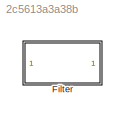
MODEL slx_2c5613a3a38b
KIND model
CONFIG AbsTol = auto
CONFIG EnableMultiTasking = off
CONFIG FixedStep = auto
CONFIG MaxStep = auto
CONFIG MinStep = auto
CONFIG RelTol = 1e-3
CONFIG SampleTimeConstraint = Unconstrained
CONFIG SolverName = VariableStepAuto
CONFIG StartTime = 0.0
CONFIG StopTime = 10.0
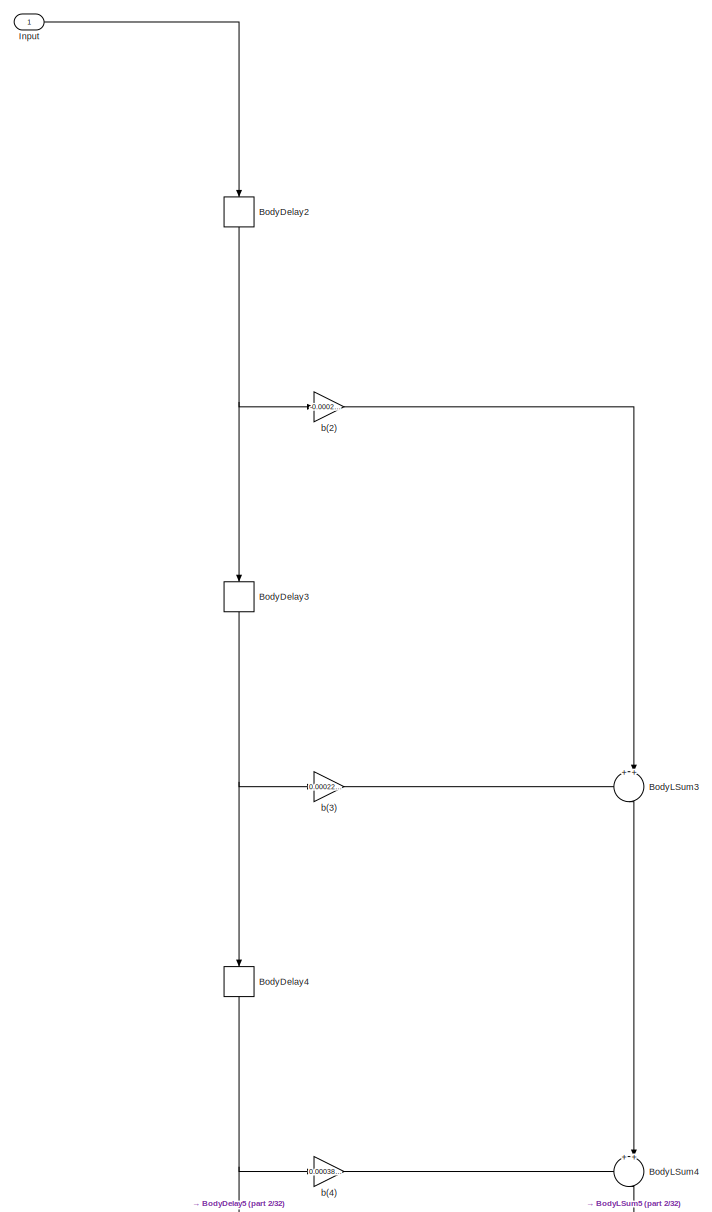
[diagram: Filter - part 1/32, full width, top band]
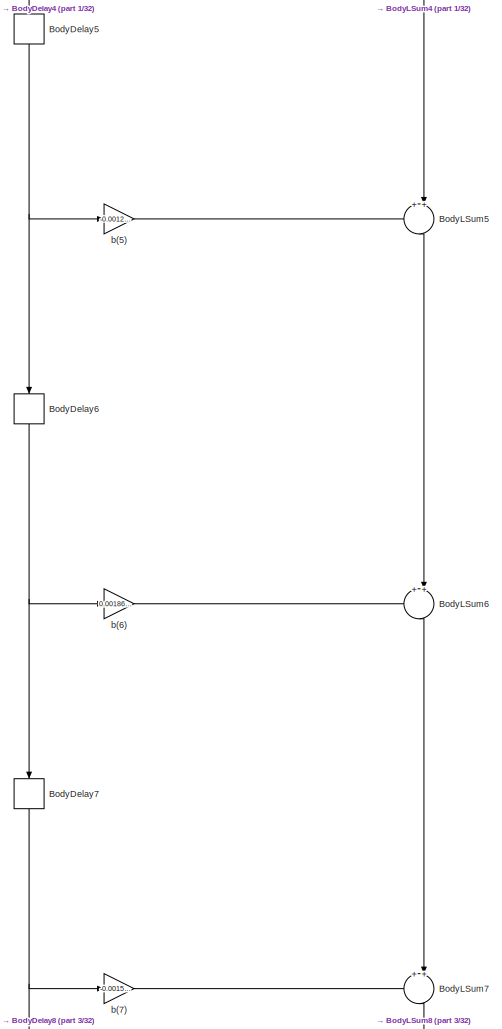
[diagram: Filter - part 2/32, top center region]
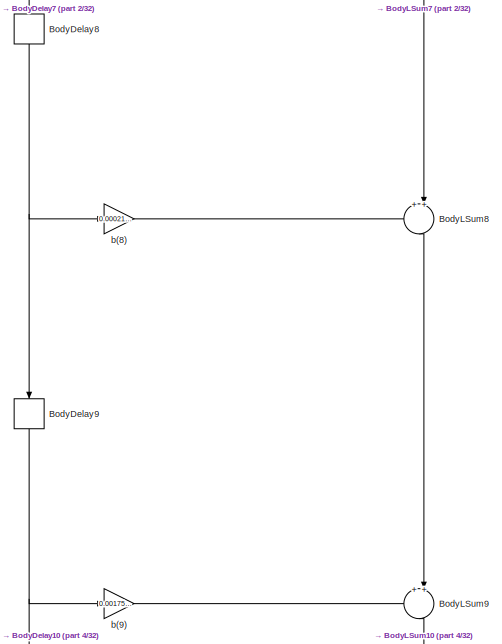
[diagram: Filter - part 3/32, top center region]
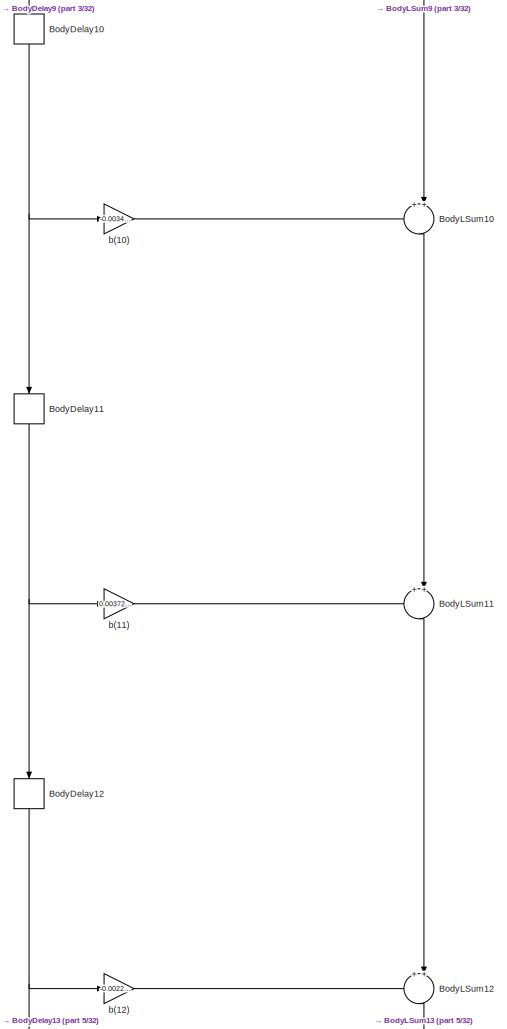
[diagram: Filter - part 4/32, top center region]
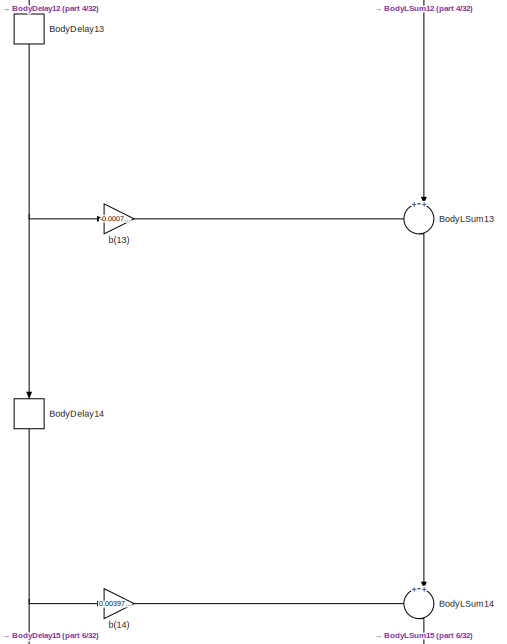
[diagram: Filter - part 5/32, top center region]
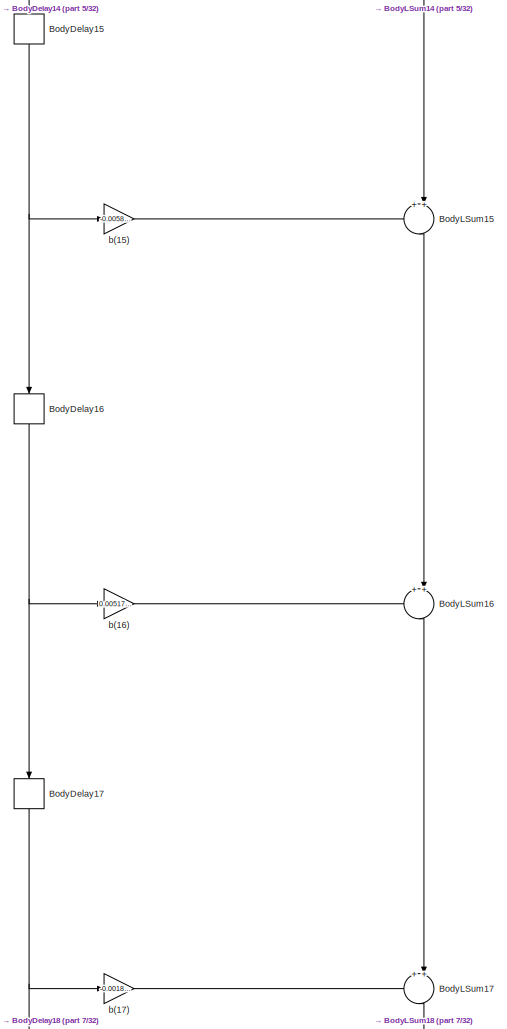
[diagram: Filter - part 6/32, top center region]
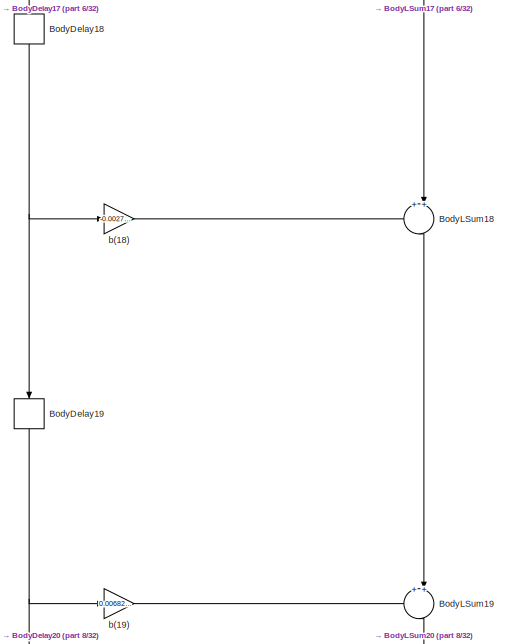
[diagram: Filter - part 7/32, top center region]
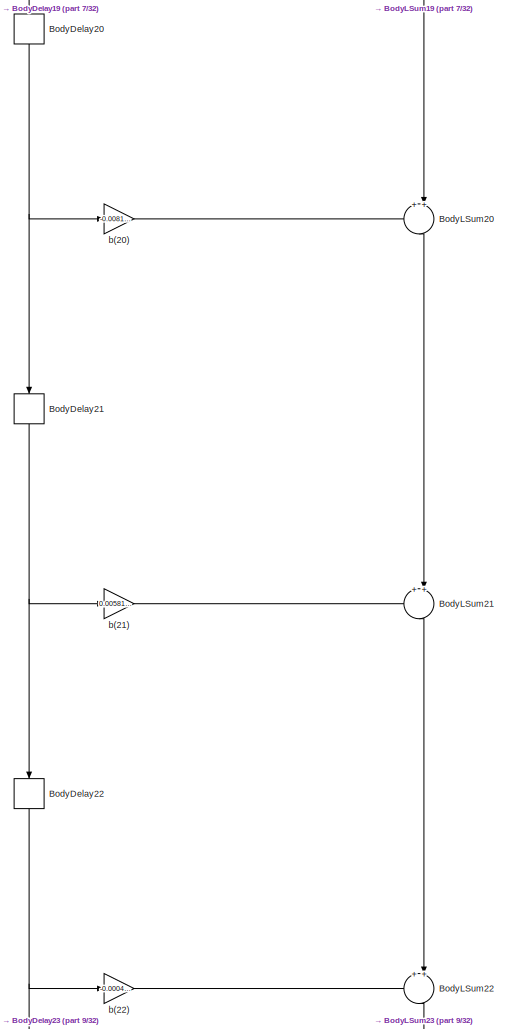
[diagram: Filter - part 8/32, top center region]
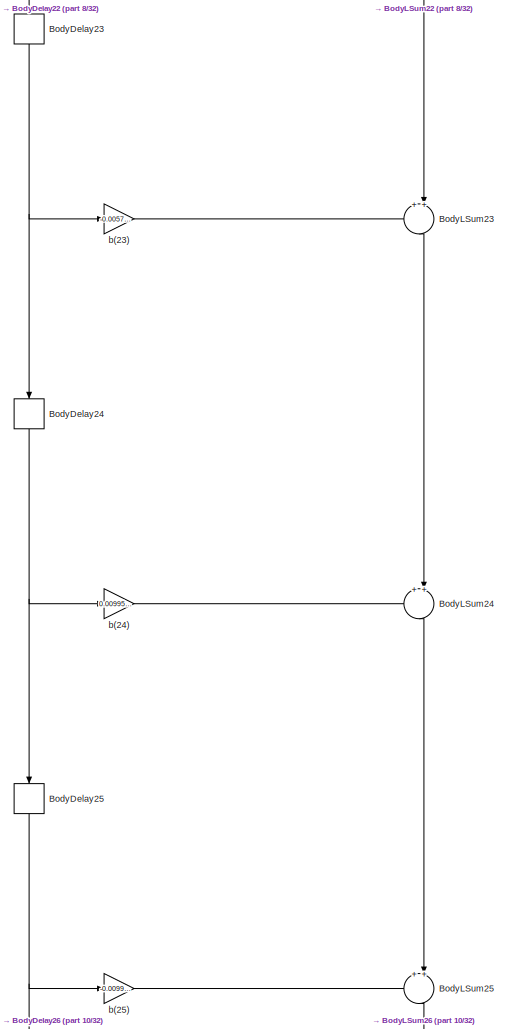
[diagram: Filter - part 9/32, top center region]
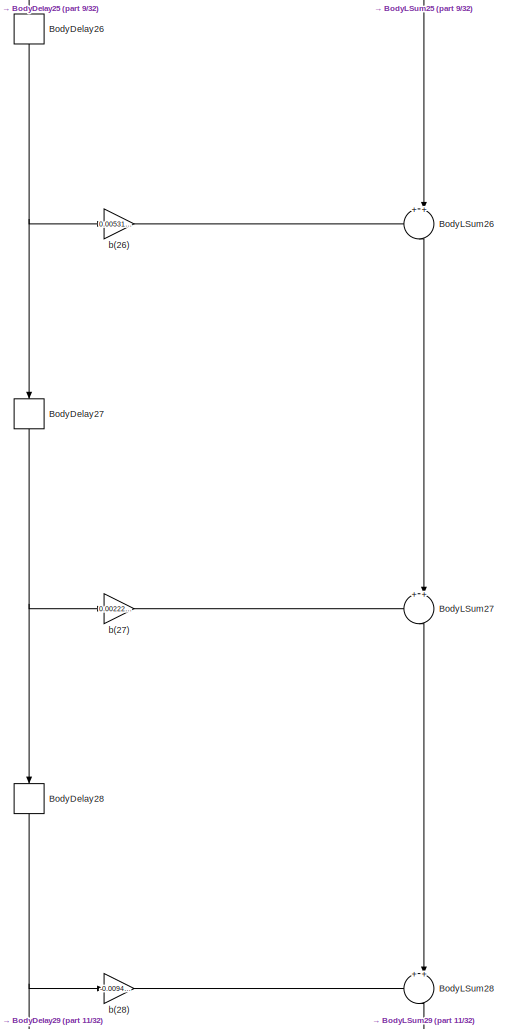
[diagram: Filter - part 10/32, top center region]
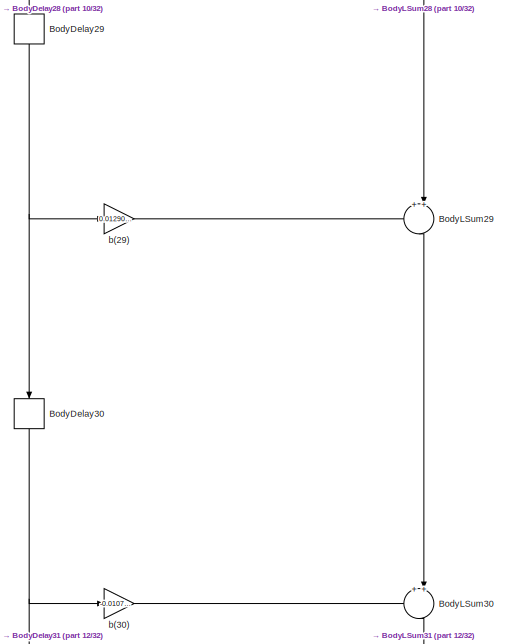
[diagram: Filter - part 11/32, central region]
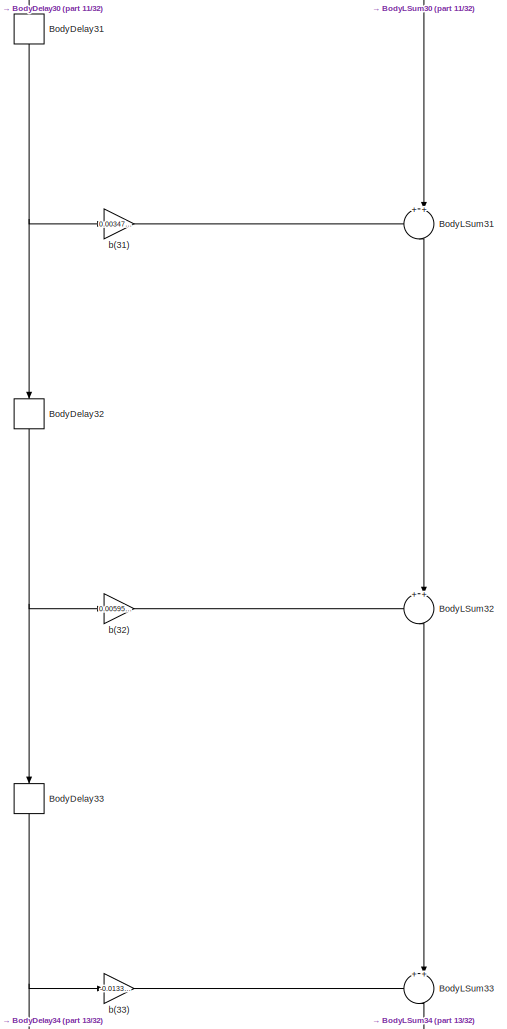
[diagram: Filter - part 12/32, central region]
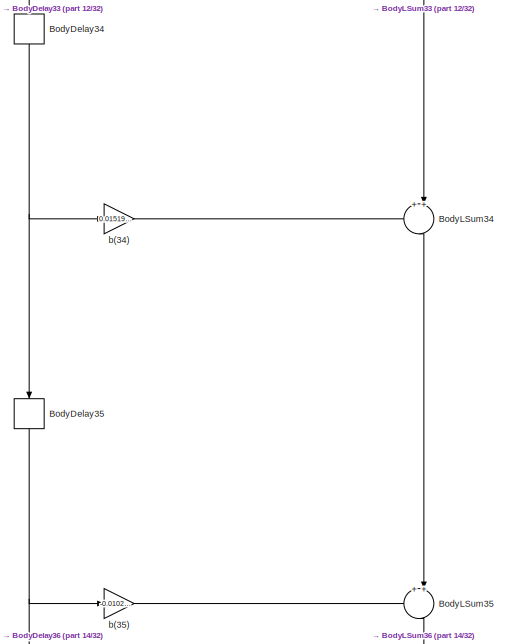
[diagram: Filter - part 13/32, central region]
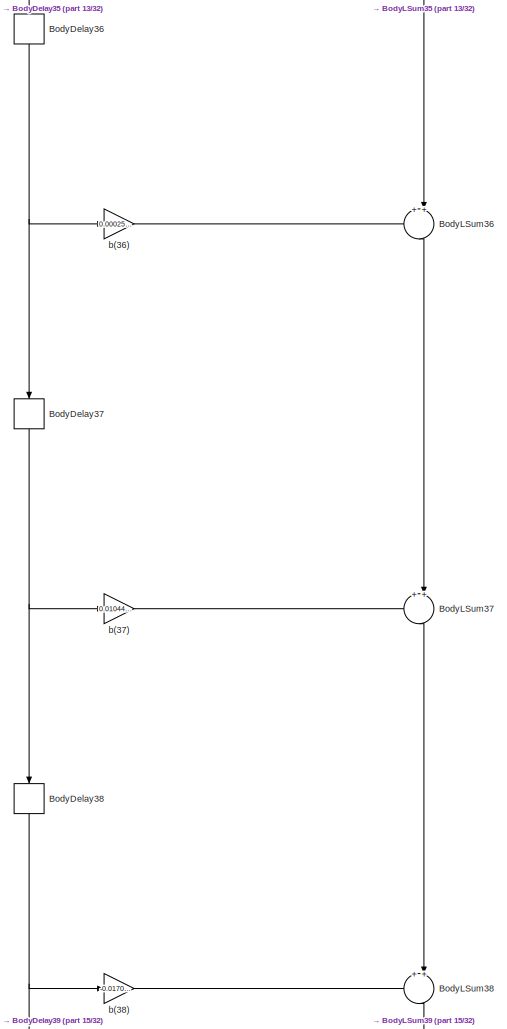
[diagram: Filter - part 14/32, central region]
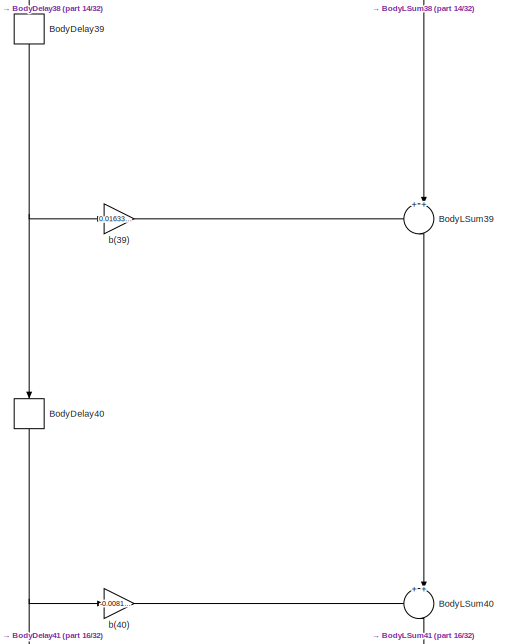
[diagram: Filter - part 15/32, central region]
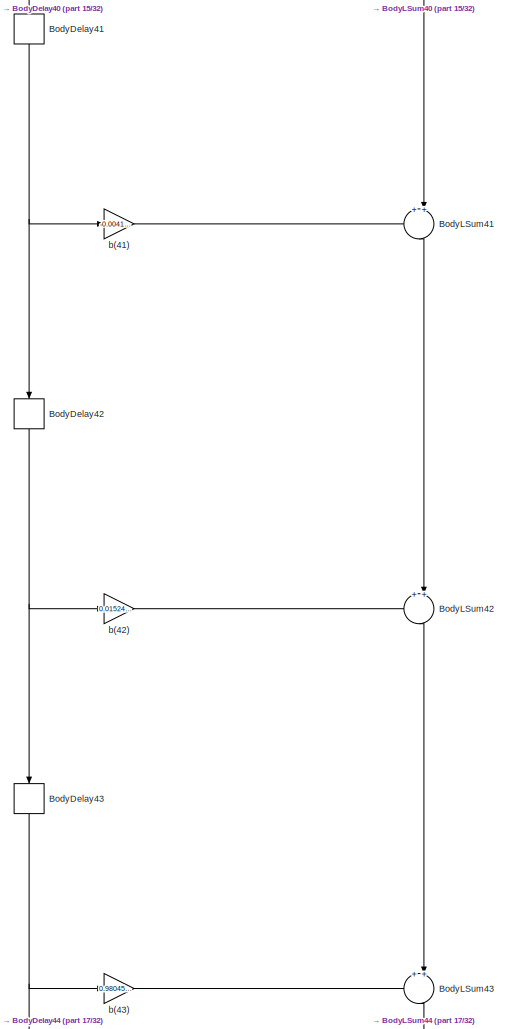
[diagram: Filter - part 16/32, central region]
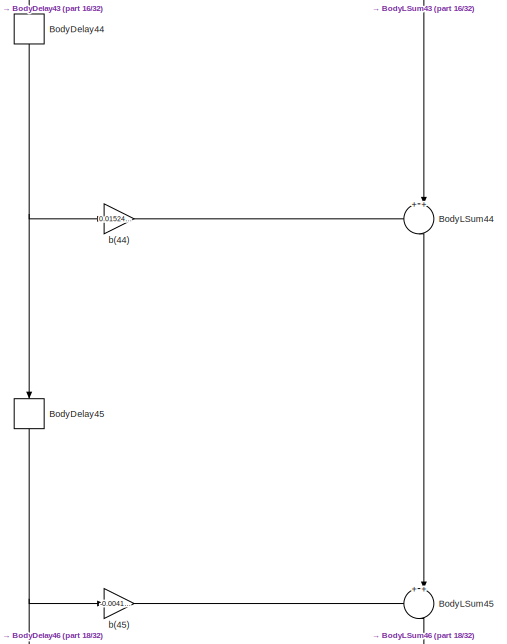
[diagram: Filter - part 17/32, central region]
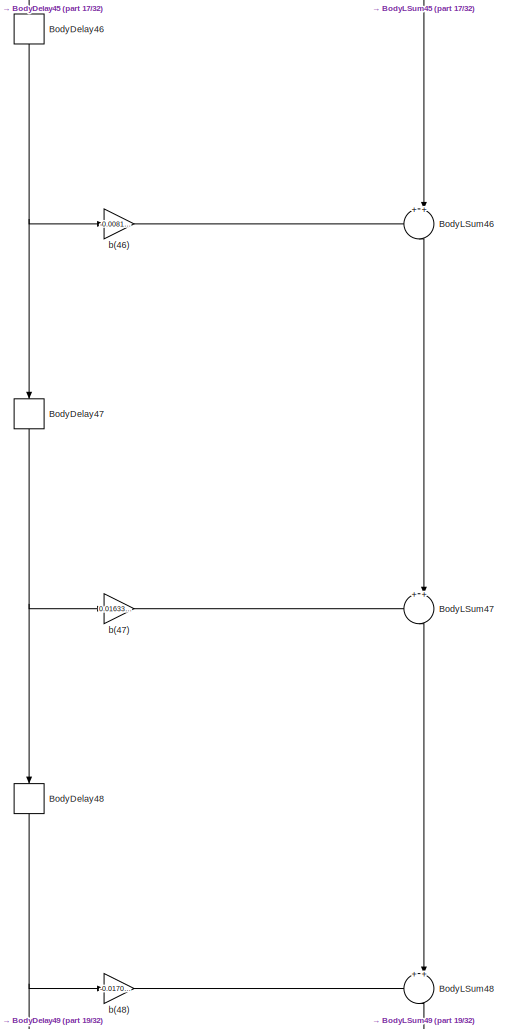
[diagram: Filter - part 18/32, central region]
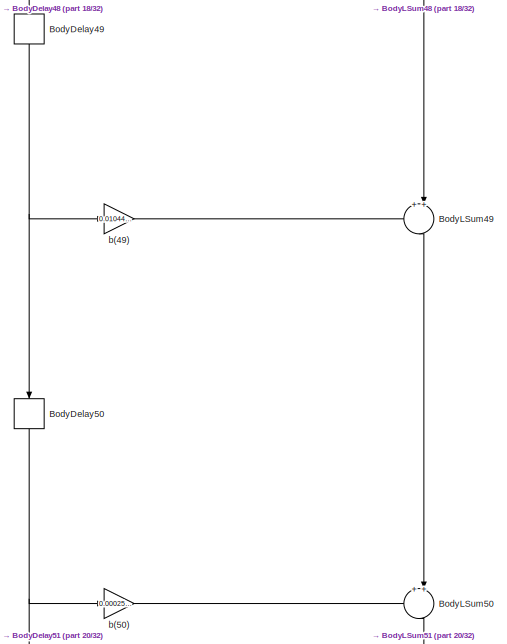
[diagram: Filter - part 19/32, central region]
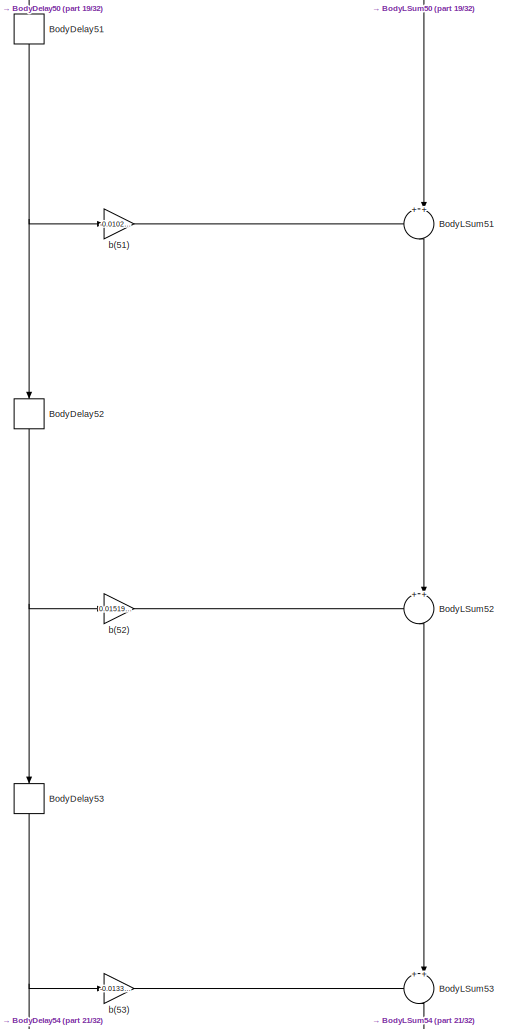
[diagram: Filter - part 20/32, central region]
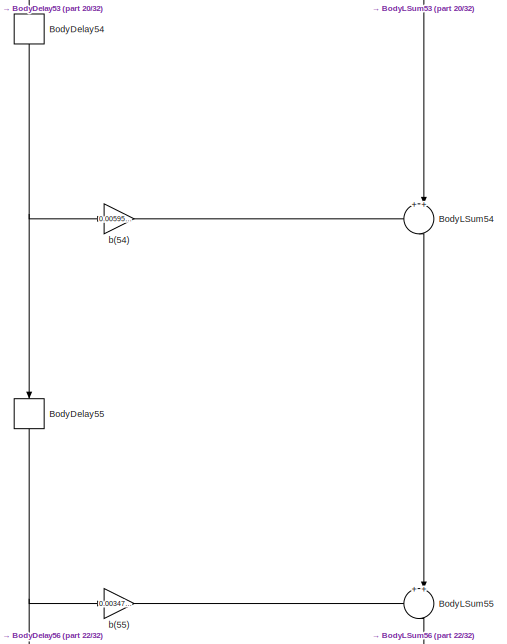
[diagram: Filter - part 21/32, central region]
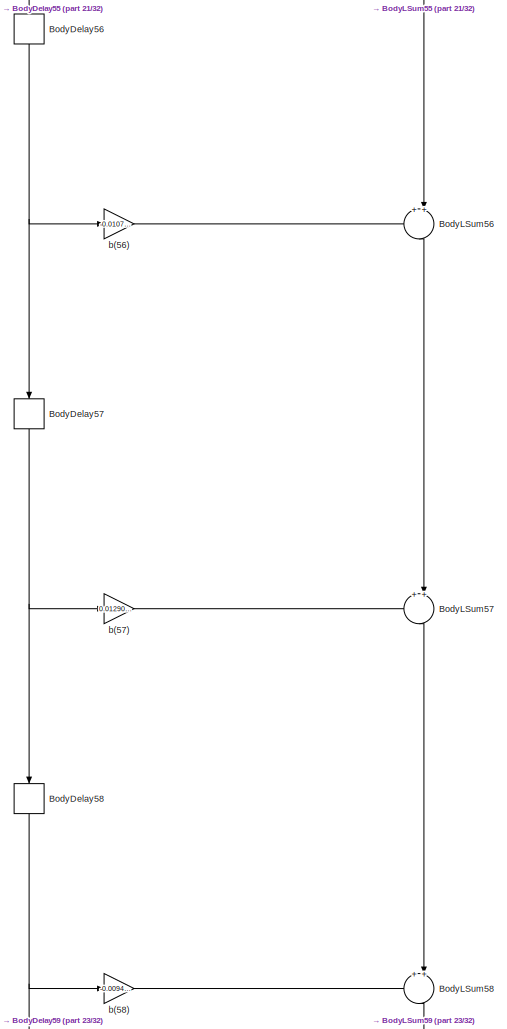
[diagram: Filter - part 22/32, bottom center region]
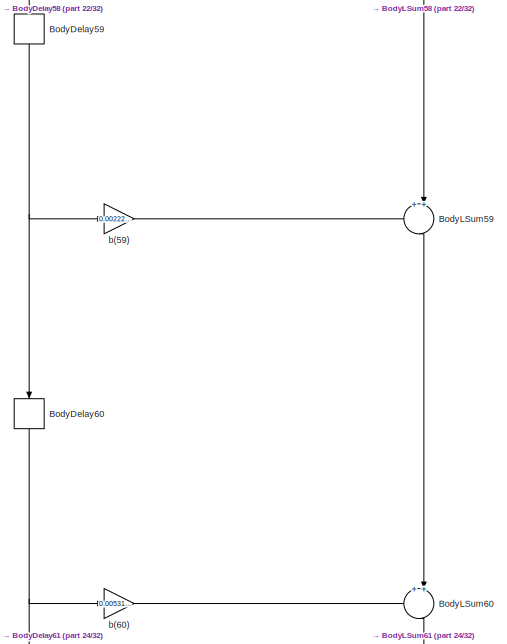
[diagram: Filter - part 23/32, bottom center region]
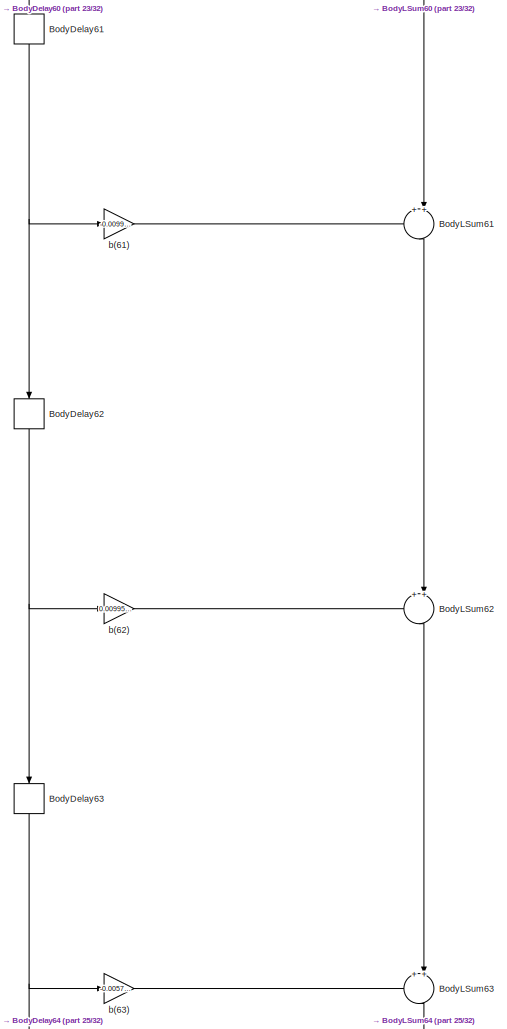
[diagram: Filter - part 24/32, bottom center region]
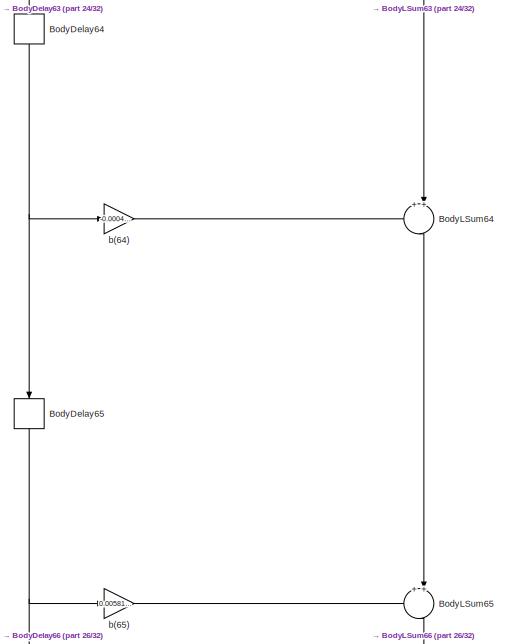
[diagram: Filter - part 25/32, bottom center region]
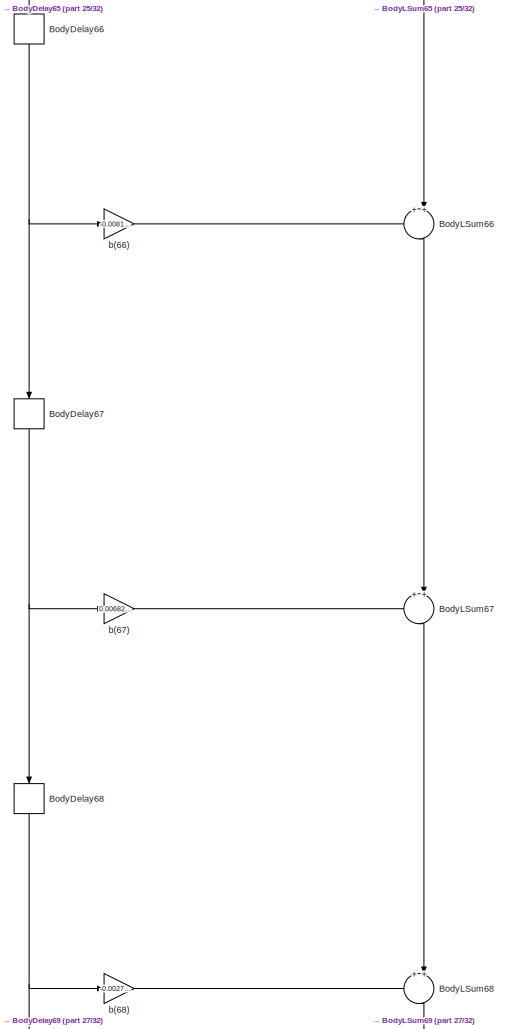
[diagram: Filter - part 26/32, bottom center region]
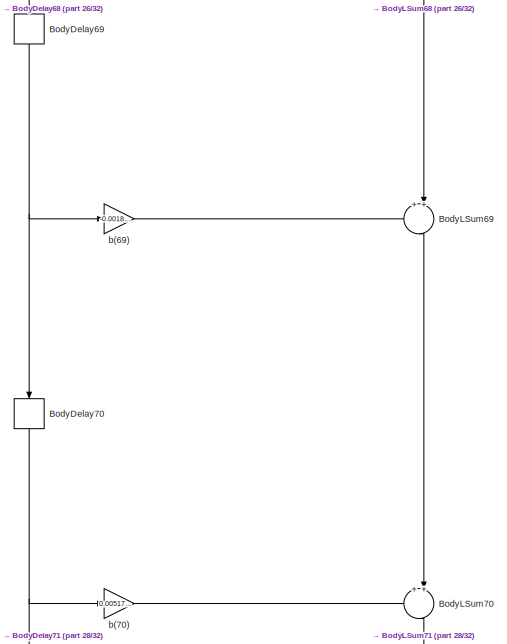
[diagram: Filter - part 27/32, bottom center region]
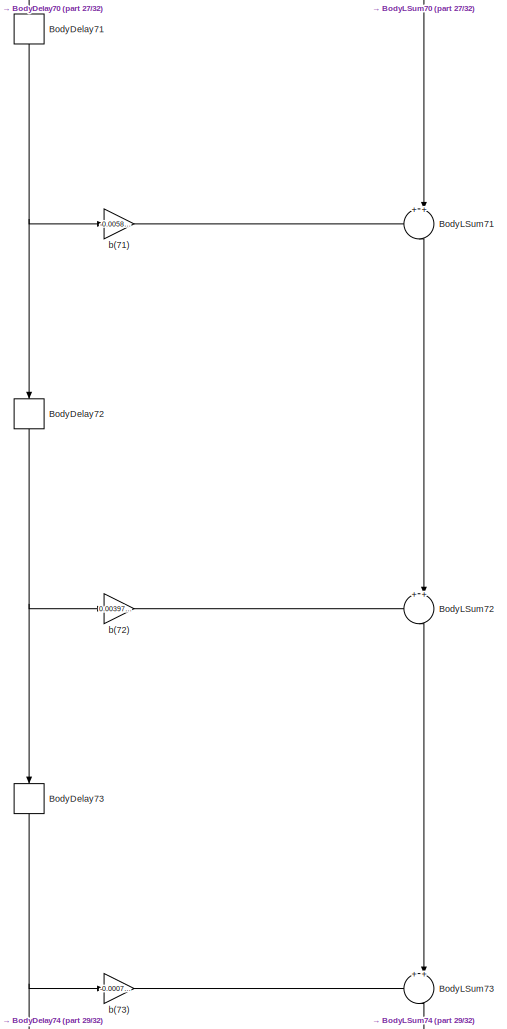
[diagram: Filter - part 28/32, bottom center region]
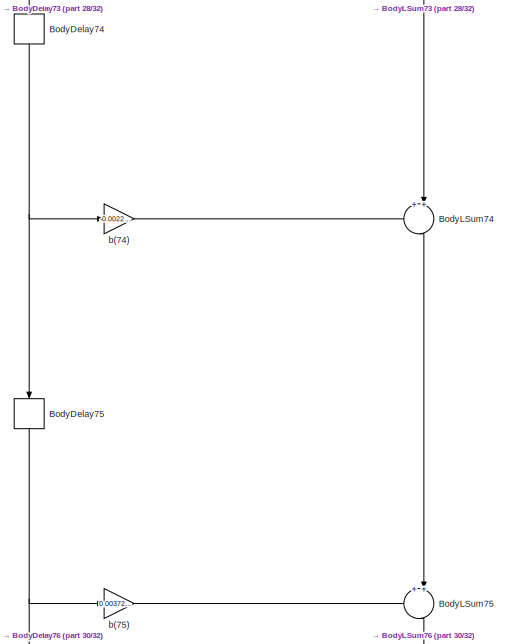
[diagram: Filter - part 29/32, bottom center region]
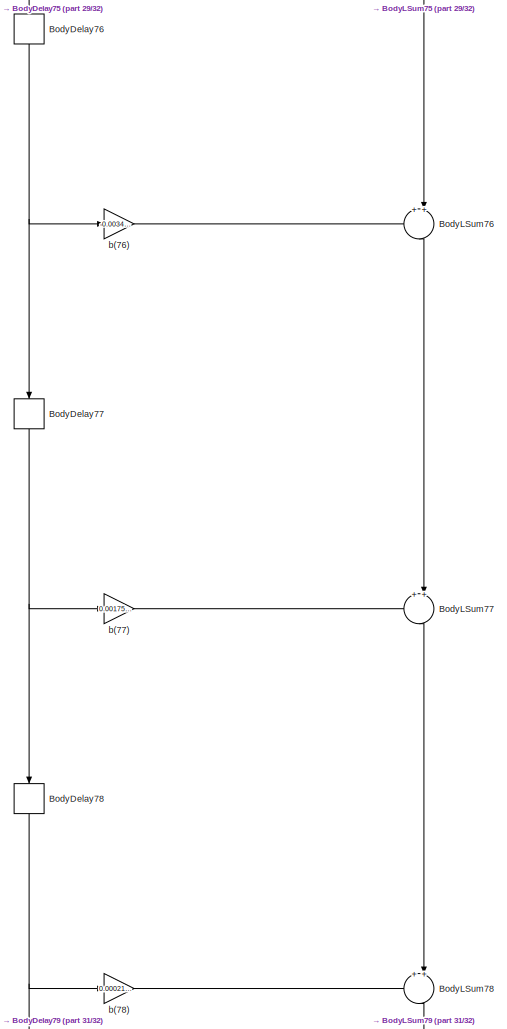
[diagram: Filter - part 30/32, bottom center region]
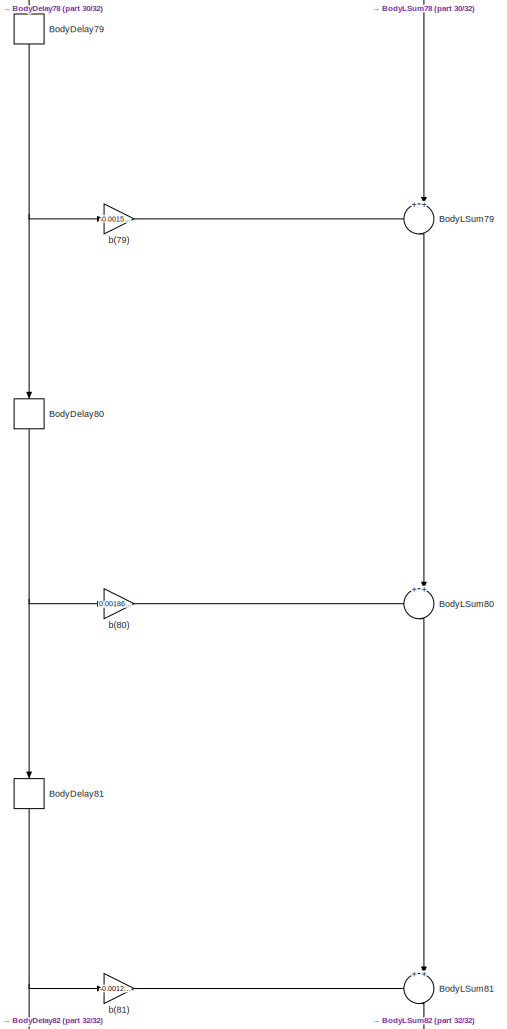
[diagram: Filter - part 31/32, bottom center region]
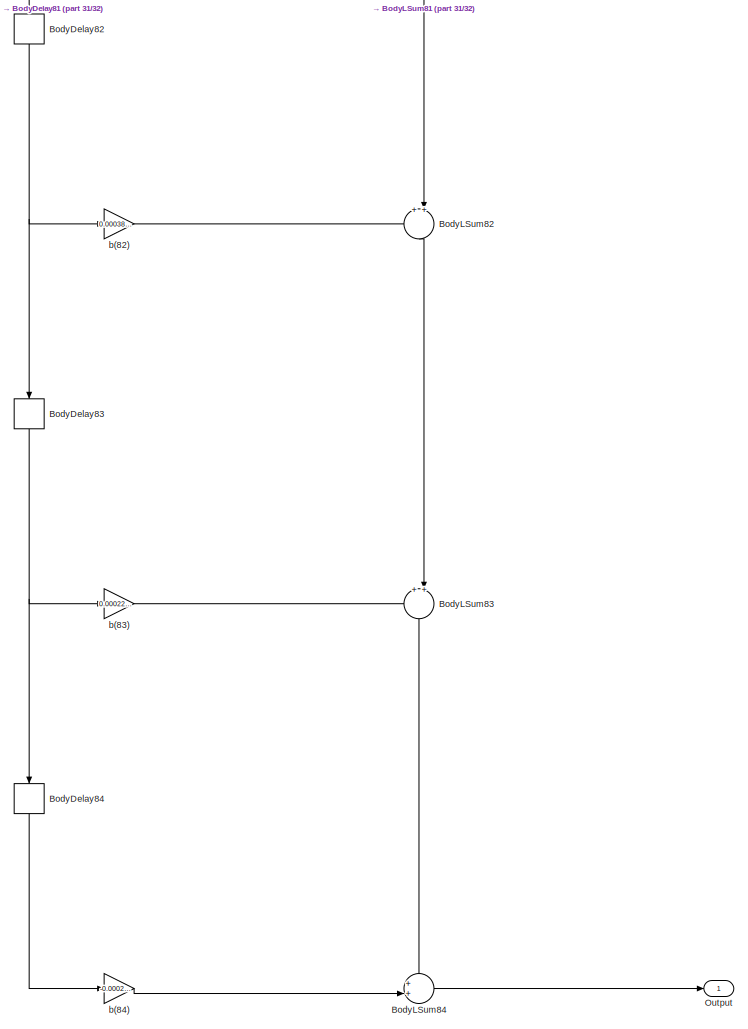
[diagram: Filter - part 32/32, full width, bottom band]
BLOCK [SubSystem] Filter
  ErrorFcn = dspFilterRealizedInBasicElemsAlgLoopErrFcnCallback
  Tag = FilterWizardSubSystem
  UserDataPersistent = on
BLOCK [Delay] Filter/BodyDelay10
  DelayLength = 1
  InitialCondition = 0
  InputPortMap = u0
  NameLocation = right
BLOCK [Delay] Filter/BodyDelay11
  DelayLength = 1
  InitialCondition = 0
  InputPortMap = u0
  NameLocation = right
BLOCK [Delay] Filter/BodyDelay12
  DelayLength = 1
  InitialCondition = 0
  InputPortMap = u0
  NameLocation = right
BLOCK [Delay] Filter/BodyDelay13
  DelayLength = 1
  InitialCondition = 0
  InputPortMap = u0
  NameLocation = right
BLOCK [Delay] Filter/BodyDelay14
  DelayLength = 1
  InitialCondition = 0
  InputPortMap = u0
  NameLocation = right
BLOCK [Delay] Filter/BodyDelay15
  DelayLength = 1
  InitialCondition = 0
  InputPortMap = u0
  NameLocation = right
BLOCK [Delay] Filter/BodyDelay16
  DelayLength = 1
  InitialCondition = 0
  InputPortMap = u0
  NameLocation = right
BLOCK [Delay] Filter/BodyDelay17
  DelayLength = 1
  InitialCondition = 0
  InputPortMap = u0
  NameLocation = right
BLOCK [Delay] Filter/BodyDelay18
  DelayLength = 1
  InitialCondition = 0
  InputPortMap = u0
  NameLocation = right
BLOCK [Delay] Filter/BodyDelay19
  DelayLength = 1
  InitialCondition = 0
  InputPortMap = u0
  NameLocation = right
BLOCK [Delay] Filter/BodyDelay2
  DelayLength = 1
  InitialCondition = 0
  InputPortMap = u0
  NameLocation = right
BLOCK [Delay] Filter/BodyDelay20
  DelayLength = 1
  InitialCondition = 0
  InputPortMap = u0
  NameLocation = right
BLOCK [Delay] Filter/BodyDelay21
  DelayLength = 1
  InitialCondition = 0
  InputPortMap = u0
  NameLocation = right
BLOCK [Delay] Filter/BodyDelay22
  DelayLength = 1
  InitialCondition = 0
  InputPortMap = u0
  NameLocation = right
BLOCK [Delay] Filter/BodyDelay23
  DelayLength = 1
  InitialCondition = 0
  InputPortMap = u0
  NameLocation = right
BLOCK [Delay] Filter/BodyDelay24
  DelayLength = 1
  InitialCondition = 0
  InputPortMap = u0
  NameLocation = right
BLOCK [Delay] Filter/BodyDelay25
  DelayLength = 1
  InitialCondition = 0
  InputPortMap = u0
  NameLocation = right
BLOCK [Delay] Filter/BodyDelay26
  DelayLength = 1
  InitialCondition = 0
  InputPortMap = u0
  NameLocation = right
BLOCK [Delay] Filter/BodyDelay27
  DelayLength = 1
  InitialCondition = 0
  InputPortMap = u0
  NameLocation = right
BLOCK [Delay] Filter/BodyDelay28
  DelayLength = 1
  InitialCondition = 0
  InputPortMap = u0
  NameLocation = right
BLOCK [Delay] Filter/BodyDelay29
  DelayLength = 1
  InitialCondition = 0
  InputPortMap = u0
  NameLocation = right
BLOCK [Delay] Filter/BodyDelay3
  DelayLength = 1
  InitialCondition = 0
  InputPortMap = u0
  NameLocation = right
BLOCK [Delay] Filter/BodyDelay30
  DelayLength = 1
  InitialCondition = 0
  InputPortMap = u0
  NameLocation = right
BLOCK [Delay] Filter/BodyDelay31
  DelayLength = 1
  InitialCondition = 0
  InputPortMap = u0
  NameLocation = right
BLOCK [Delay] Filter/BodyDelay32
  DelayLength = 1
  InitialCondition = 0
  InputPortMap = u0
  NameLocation = right
BLOCK [Delay] Filter/BodyDelay33
  DelayLength = 1
  InitialCondition = 0
  InputPortMap = u0
  NameLocation = right
BLOCK [Delay] Filter/BodyDelay34
  DelayLength = 1
  InitialCondition = 0
  InputPortMap = u0
  NameLocation = right
BLOCK [Delay] Filter/BodyDelay35
  DelayLength = 1
  InitialCondition = 0
  InputPortMap = u0
  NameLocation = right
BLOCK [Delay] Filter/BodyDelay36
  DelayLength = 1
  InitialCondition = 0
  InputPortMap = u0
  NameLocation = right
BLOCK [Delay] Filter/BodyDelay37
  DelayLength = 1
  InitialCondition = 0
  InputPortMap = u0
  NameLocation = right
BLOCK [Delay] Filter/BodyDelay38
  DelayLength = 1
  InitialCondition = 0
  InputPortMap = u0
  NameLocation = right
BLOCK [Delay] Filter/BodyDelay39
  DelayLength = 1
  InitialCondition = 0
  InputPortMap = u0
  NameLocation = right
BLOCK [Delay] Filter/BodyDelay4
  DelayLength = 1
  InitialCondition = 0
  InputPortMap = u0
  NameLocation = right
BLOCK [Delay] Filter/BodyDelay40
  DelayLength = 1
  InitialCondition = 0
  InputPortMap = u0
  NameLocation = right
BLOCK [Delay] Filter/BodyDelay41
  DelayLength = 1
  InitialCondition = 0
  InputPortMap = u0
  NameLocation = right
BLOCK [Delay] Filter/BodyDelay42
  DelayLength = 1
  InitialCondition = 0
  InputPortMap = u0
  NameLocation = right
BLOCK [Delay] Filter/BodyDelay43
  DelayLength = 1
  InitialCondition = 0
  InputPortMap = u0
  NameLocation = right
BLOCK [Delay] Filter/BodyDelay44
  DelayLength = 1
  InitialCondition = 0
  InputPortMap = u0
  NameLocation = right
BLOCK [Delay] Filter/BodyDelay45
  DelayLength = 1
  InitialCondition = 0
  InputPortMap = u0
  NameLocation = right
BLOCK [Delay] Filter/BodyDelay46
  DelayLength = 1
  InitialCondition = 0
  InputPortMap = u0
  NameLocation = right
BLOCK [Delay] Filter/BodyDelay47
  DelayLength = 1
  InitialCondition = 0
  InputPortMap = u0
  NameLocation = right
BLOCK [Delay] Filter/BodyDelay48
  DelayLength = 1
  InitialCondition = 0
  InputPortMap = u0
  NameLocation = right
BLOCK [Delay] Filter/BodyDelay49
  DelayLength = 1
  InitialCondition = 0
  InputPortMap = u0
  NameLocation = right
BLOCK [Delay] Filter/BodyDelay5
  DelayLength = 1
  InitialCondition = 0
  InputPortMap = u0
  NameLocation = right
BLOCK [Delay] Filter/BodyDelay50
  DelayLength = 1
  InitialCondition = 0
  InputPortMap = u0
  NameLocation = right
BLOCK [Delay] Filter/BodyDelay51
  DelayLength = 1
  InitialCondition = 0
  InputPortMap = u0
  NameLocation = right
BLOCK [Delay] Filter/BodyDelay52
  DelayLength = 1
  InitialCondition = 0
  InputPortMap = u0
  NameLocation = right
BLOCK [Delay] Filter/BodyDelay53
  DelayLength = 1
  InitialCondition = 0
  InputPortMap = u0
  NameLocation = right
BLOCK [Delay] Filter/BodyDelay54
  DelayLength = 1
  InitialCondition = 0
  InputPortMap = u0
  NameLocation = right
BLOCK [Delay] Filter/BodyDelay55
  DelayLength = 1
  InitialCondition = 0
  InputPortMap = u0
  NameLocation = right
BLOCK [Delay] Filter/BodyDelay56
  DelayLength = 1
  InitialCondition = 0
  InputPortMap = u0
  NameLocation = right
BLOCK [Delay] Filter/BodyDelay57
  DelayLength = 1
  InitialCondition = 0
  InputPortMap = u0
  NameLocation = right
BLOCK [Delay] Filter/BodyDelay58
  DelayLength = 1
  InitialCondition = 0
  InputPortMap = u0
  NameLocation = right
BLOCK [Delay] Filter/BodyDelay59
  DelayLength = 1
  InitialCondition = 0
  InputPortMap = u0
  NameLocation = right
BLOCK [Delay] Filter/BodyDelay6
  DelayLength = 1
  InitialCondition = 0
  InputPortMap = u0
  NameLocation = right
BLOCK [Delay] Filter/BodyDelay60
  DelayLength = 1
  InitialCondition = 0
  InputPortMap = u0
  NameLocation = right
BLOCK [Delay] Filter/BodyDelay61
  DelayLength = 1
  InitialCondition = 0
  InputPortMap = u0
  NameLocation = right
BLOCK [Delay] Filter/BodyDelay62
  DelayLength = 1
  InitialCondition = 0
  InputPortMap = u0
  NameLocation = right
BLOCK [Delay] Filter/BodyDelay63
  DelayLength = 1
  InitialCondition = 0
  InputPortMap = u0
  NameLocation = right
BLOCK [Delay] Filter/BodyDelay64
  DelayLength = 1
  InitialCondition = 0
  InputPortMap = u0
  NameLocation = right
BLOCK [Delay] Filter/BodyDelay65
  DelayLength = 1
  InitialCondition = 0
  InputPortMap = u0
  NameLocation = right
BLOCK [Delay] Filter/BodyDelay66
  DelayLength = 1
  InitialCondition = 0
  InputPortMap = u0
  NameLocation = right
BLOCK [Delay] Filter/BodyDelay67
  DelayLength = 1
  InitialCondition = 0
  InputPortMap = u0
  NameLocation = right
BLOCK [Delay] Filter/BodyDelay68
  DelayLength = 1
  InitialCondition = 0
  InputPortMap = u0
  NameLocation = right
BLOCK [Delay] Filter/BodyDelay69
  DelayLength = 1
  InitialCondition = 0
  InputPortMap = u0
  NameLocation = right
BLOCK [Delay] Filter/BodyDelay7
  DelayLength = 1
  InitialCondition = 0
  InputPortMap = u0
  NameLocation = right
BLOCK [Delay] Filter/BodyDelay70
  DelayLength = 1
  InitialCondition = 0
  InputPortMap = u0
  NameLocation = right
BLOCK [Delay] Filter/BodyDelay71
  DelayLength = 1
  InitialCondition = 0
  InputPortMap = u0
  NameLocation = right
BLOCK [Delay] Filter/BodyDelay72
  DelayLength = 1
  InitialCondition = 0
  InputPortMap = u0
  NameLocation = right
BLOCK [Delay] Filter/BodyDelay73
  DelayLength = 1
  InitialCondition = 0
  InputPortMap = u0
  NameLocation = right
BLOCK [Delay] Filter/BodyDelay74
  DelayLength = 1
  InitialCondition = 0
  InputPortMap = u0
  NameLocation = right
BLOCK [Delay] Filter/BodyDelay75
  DelayLength = 1
  InitialCondition = 0
  InputPortMap = u0
  NameLocation = right
BLOCK [Delay] Filter/BodyDelay76
  DelayLength = 1
  InitialCondition = 0
  InputPortMap = u0
  NameLocation = right
BLOCK [Delay] Filter/BodyDelay77
  DelayLength = 1
  InitialCondition = 0
  InputPortMap = u0
  NameLocation = right
BLOCK [Delay] Filter/BodyDelay78
  DelayLength = 1
  InitialCondition = 0
  InputPortMap = u0
  NameLocation = right
BLOCK [Delay] Filter/BodyDelay79
  DelayLength = 1
  InitialCondition = 0
  InputPortMap = u0
  NameLocation = right
BLOCK [Delay] Filter/BodyDelay8
  DelayLength = 1
  InitialCondition = 0
  InputPortMap = u0
  NameLocation = right
BLOCK [Delay] Filter/BodyDelay80
  DelayLength = 1
  InitialCondition = 0
  InputPortMap = u0
  NameLocation = right
BLOCK [Delay] Filter/BodyDelay81
  DelayLength = 1
  InitialCondition = 0
  InputPortMap = u0
  NameLocation = right
BLOCK [Delay] Filter/BodyDelay82
  DelayLength = 1
  InitialCondition = 0
  InputPortMap = u0
  NameLocation = right
BLOCK [Delay] Filter/BodyDelay83
  DelayLength = 1
  InitialCondition = 0
  InputPortMap = u0
  NameLocation = right
BLOCK [Delay] Filter/BodyDelay84
  DelayLength = 1
  InitialCondition = 0
  InputPortMap = u0
  NameLocation = right
BLOCK [Delay] Filter/BodyDelay9
  DelayLength = 1
  InitialCondition = 0
  InputPortMap = u0
  NameLocation = right
BLOCK [Sum] Filter/BodyLSum10
  Inputs = ++|
  NameLocation = right
  OutDataTypeStr = Inherit: Same as first input
  RndMeth = Nearest
  SaturateOnIntegerOverflow = on
BLOCK [Sum] Filter/BodyLSum11
  Inputs = ++|
  NameLocation = right
  OutDataTypeStr = Inherit: Same as first input
  RndMeth = Nearest
  SaturateOnIntegerOverflow = on
BLOCK [Sum] Filter/BodyLSum12
  Inputs = ++|
  NameLocation = right
  OutDataTypeStr = Inherit: Same as first input
  RndMeth = Nearest
  SaturateOnIntegerOverflow = on
BLOCK [Sum] Filter/BodyLSum13
  Inputs = ++|
  NameLocation = right
  OutDataTypeStr = Inherit: Same as first input
  RndMeth = Nearest
  SaturateOnIntegerOverflow = on
BLOCK [Sum] Filter/BodyLSum14
  Inputs = ++|
  NameLocation = right
  OutDataTypeStr = Inherit: Same as first input
  RndMeth = Nearest
  SaturateOnIntegerOverflow = on
BLOCK [Sum] Filter/BodyLSum15
  Inputs = ++|
  NameLocation = right
  OutDataTypeStr = Inherit: Same as first input
  RndMeth = Nearest
  SaturateOnIntegerOverflow = on
BLOCK [Sum] Filter/BodyLSum16
  Inputs = ++|
  NameLocation = right
  OutDataTypeStr = Inherit: Same as first input
  RndMeth = Nearest
  SaturateOnIntegerOverflow = on
BLOCK [Sum] Filter/BodyLSum17
  Inputs = ++|
  NameLocation = right
  OutDataTypeStr = Inherit: Same as first input
  RndMeth = Nearest
  SaturateOnIntegerOverflow = on
BLOCK [Sum] Filter/BodyLSum18
  Inputs = ++|
  NameLocation = right
  OutDataTypeStr = Inherit: Same as first input
  RndMeth = Nearest
  SaturateOnIntegerOverflow = on
BLOCK [Sum] Filter/BodyLSum19
  Inputs = ++|
  NameLocation = right
  OutDataTypeStr = Inherit: Same as first input
  RndMeth = Nearest
  SaturateOnIntegerOverflow = on
BLOCK [Sum] Filter/BodyLSum20
  Inputs = ++|
  NameLocation = right
  OutDataTypeStr = Inherit: Same as first input
  RndMeth = Nearest
  SaturateOnIntegerOverflow = on
BLOCK [Sum] Filter/BodyLSum21
  Inputs = ++|
  NameLocation = right
  OutDataTypeStr = Inherit: Same as first input
  RndMeth = Nearest
  SaturateOnIntegerOverflow = on
BLOCK [Sum] Filter/BodyLSum22
  Inputs = ++|
  NameLocation = right
  OutDataTypeStr = Inherit: Same as first input
  RndMeth = Nearest
  SaturateOnIntegerOverflow = on
BLOCK [Sum] Filter/BodyLSum23
  Inputs = ++|
  NameLocation = right
  OutDataTypeStr = Inherit: Same as first input
  RndMeth = Nearest
  SaturateOnIntegerOverflow = on
BLOCK [Sum] Filter/BodyLSum24
  Inputs = ++|
  NameLocation = right
  OutDataTypeStr = Inherit: Same as first input
  RndMeth = Nearest
  SaturateOnIntegerOverflow = on
BLOCK [Sum] Filter/BodyLSum25
  Inputs = ++|
  NameLocation = right
  OutDataTypeStr = Inherit: Same as first input
  RndMeth = Nearest
  SaturateOnIntegerOverflow = on
BLOCK [Sum] Filter/BodyLSum26
  Inputs = ++|
  NameLocation = right
  OutDataTypeStr = Inherit: Same as first input
  RndMeth = Nearest
  SaturateOnIntegerOverflow = on
BLOCK [Sum] Filter/BodyLSum27
  Inputs = ++|
  NameLocation = right
  OutDataTypeStr = Inherit: Same as first input
  RndMeth = Nearest
  SaturateOnIntegerOverflow = on
BLOCK [Sum] Filter/BodyLSum28
  Inputs = ++|
  NameLocation = right
  OutDataTypeStr = Inherit: Same as first input
  RndMeth = Nearest
  SaturateOnIntegerOverflow = on
BLOCK [Sum] Filter/BodyLSum29
  Inputs = ++|
  NameLocation = right
  OutDataTypeStr = Inherit: Same as first input
  RndMeth = Nearest
  SaturateOnIntegerOverflow = on
BLOCK [Sum] Filter/BodyLSum3
  Inputs = ++|
  NameLocation = right
  OutDataTypeStr = Inherit: Same as first input
  RndMeth = Nearest
  SaturateOnIntegerOverflow = on
BLOCK [Sum] Filter/BodyLSum30
  Inputs = ++|
  NameLocation = right
  OutDataTypeStr = Inherit: Same as first input
  RndMeth = Nearest
  SaturateOnIntegerOverflow = on
BLOCK [Sum] Filter/BodyLSum31
  Inputs = ++|
  NameLocation = right
  OutDataTypeStr = Inherit: Same as first input
  RndMeth = Nearest
  SaturateOnIntegerOverflow = on
BLOCK [Sum] Filter/BodyLSum32
  Inputs = ++|
  NameLocation = right
  OutDataTypeStr = Inherit: Same as first input
  RndMeth = Nearest
  SaturateOnIntegerOverflow = on
BLOCK [Sum] Filter/BodyLSum33
  Inputs = ++|
  NameLocation = right
  OutDataTypeStr = Inherit: Same as first input
  RndMeth = Nearest
  SaturateOnIntegerOverflow = on
BLOCK [Sum] Filter/BodyLSum34
  Inputs = ++|
  NameLocation = right
  OutDataTypeStr = Inherit: Same as first input
  RndMeth = Nearest
  SaturateOnIntegerOverflow = on
BLOCK [Sum] Filter/BodyLSum35
  Inputs = ++|
  NameLocation = right
  OutDataTypeStr = Inherit: Same as first input
  RndMeth = Nearest
  SaturateOnIntegerOverflow = on
BLOCK [Sum] Filter/BodyLSum36
  Inputs = ++|
  NameLocation = right
  OutDataTypeStr = Inherit: Same as first input
  RndMeth = Nearest
  SaturateOnIntegerOverflow = on
BLOCK [Sum] Filter/BodyLSum37
  Inputs = ++|
  NameLocation = right
  OutDataTypeStr = Inherit: Same as first input
  RndMeth = Nearest
  SaturateOnIntegerOverflow = on
BLOCK [Sum] Filter/BodyLSum38
  Inputs = ++|
  NameLocation = right
  OutDataTypeStr = Inherit: Same as first input
  RndMeth = Nearest
  SaturateOnIntegerOverflow = on
BLOCK [Sum] Filter/BodyLSum39
  Inputs = ++|
  NameLocation = right
  OutDataTypeStr = Inherit: Same as first input
  RndMeth = Nearest
  SaturateOnIntegerOverflow = on
BLOCK [Sum] Filter/BodyLSum4
  Inputs = ++|
  NameLocation = right
  OutDataTypeStr = Inherit: Same as first input
  RndMeth = Nearest
  SaturateOnIntegerOverflow = on
BLOCK [Sum] Filter/BodyLSum40
  Inputs = ++|
  NameLocation = right
  OutDataTypeStr = Inherit: Same as first input
  RndMeth = Nearest
  SaturateOnIntegerOverflow = on
BLOCK [Sum] Filter/BodyLSum41
  Inputs = ++|
  NameLocation = right
  OutDataTypeStr = Inherit: Same as first input
  RndMeth = Nearest
  SaturateOnIntegerOverflow = on
BLOCK [Sum] Filter/BodyLSum42
  Inputs = ++|
  NameLocation = right
  OutDataTypeStr = Inherit: Same as first input
  RndMeth = Nearest
  SaturateOnIntegerOverflow = on
BLOCK [Sum] Filter/BodyLSum43
  Inputs = ++|
  NameLocation = right
  OutDataTypeStr = Inherit: Same as first input
  RndMeth = Nearest
  SaturateOnIntegerOverflow = on
BLOCK [Sum] Filter/BodyLSum44
  Inputs = ++|
  NameLocation = right
  OutDataTypeStr = Inherit: Same as first input
  RndMeth = Nearest
  SaturateOnIntegerOverflow = on
BLOCK [Sum] Filter/BodyLSum45
  Inputs = ++|
  NameLocation = right
  OutDataTypeStr = Inherit: Same as first input
  RndMeth = Nearest
  SaturateOnIntegerOverflow = on
BLOCK [Sum] Filter/BodyLSum46
  Inputs = ++|
  NameLocation = right
  OutDataTypeStr = Inherit: Same as first input
  RndMeth = Nearest
  SaturateOnIntegerOverflow = on
BLOCK [Sum] Filter/BodyLSum47
  Inputs = ++|
  NameLocation = right
  OutDataTypeStr = Inherit: Same as first input
  RndMeth = Nearest
  SaturateOnIntegerOverflow = on
BLOCK [Sum] Filter/BodyLSum48
  Inputs = ++|
  NameLocation = right
  OutDataTypeStr = Inherit: Same as first input
  RndMeth = Nearest
  SaturateOnIntegerOverflow = on
BLOCK [Sum] Filter/BodyLSum49
  Inputs = ++|
  NameLocation = right
  OutDataTypeStr = Inherit: Same as first input
  RndMeth = Nearest
  SaturateOnIntegerOverflow = on
BLOCK [Sum] Filter/BodyLSum5
  Inputs = ++|
  NameLocation = right
  OutDataTypeStr = Inherit: Same as first input
  RndMeth = Nearest
  SaturateOnIntegerOverflow = on
BLOCK [Sum] Filter/BodyLSum50
  Inputs = ++|
  NameLocation = right
  OutDataTypeStr = Inherit: Same as first input
  RndMeth = Nearest
  SaturateOnIntegerOverflow = on
BLOCK [Sum] Filter/BodyLSum51
  Inputs = ++|
  NameLocation = right
  OutDataTypeStr = Inherit: Same as first input
  RndMeth = Nearest
  SaturateOnIntegerOverflow = on
BLOCK [Sum] Filter/BodyLSum52
  Inputs = ++|
  NameLocation = right
  OutDataTypeStr = Inherit: Same as first input
  RndMeth = Nearest
  SaturateOnIntegerOverflow = on
BLOCK [Sum] Filter/BodyLSum53
  Inputs = ++|
  NameLocation = right
  OutDataTypeStr = Inherit: Same as first input
  RndMeth = Nearest
  SaturateOnIntegerOverflow = on
BLOCK [Sum] Filter/BodyLSum54
  Inputs = ++|
  NameLocation = right
  OutDataTypeStr = Inherit: Same as first input
  RndMeth = Nearest
  SaturateOnIntegerOverflow = on
BLOCK [Sum] Filter/BodyLSum55
  Inputs = ++|
  NameLocation = right
  OutDataTypeStr = Inherit: Same as first input
  RndMeth = Nearest
  SaturateOnIntegerOverflow = on
BLOCK [Sum] Filter/BodyLSum56
  Inputs = ++|
  NameLocation = right
  OutDataTypeStr = Inherit: Same as first input
  RndMeth = Nearest
  SaturateOnIntegerOverflow = on
BLOCK [Sum] Filter/BodyLSum57
  Inputs = ++|
  NameLocation = right
  OutDataTypeStr = Inherit: Same as first input
  RndMeth = Nearest
  SaturateOnIntegerOverflow = on
BLOCK [Sum] Filter/BodyLSum58
  Inputs = ++|
  NameLocation = right
  OutDataTypeStr = Inherit: Same as first input
  RndMeth = Nearest
  SaturateOnIntegerOverflow = on
BLOCK [Sum] Filter/BodyLSum59
  Inputs = ++|
  NameLocation = right
  OutDataTypeStr = Inherit: Same as first input
  RndMeth = Nearest
  SaturateOnIntegerOverflow = on
BLOCK [Sum] Filter/BodyLSum6
  Inputs = ++|
  NameLocation = right
  OutDataTypeStr = Inherit: Same as first input
  RndMeth = Nearest
  SaturateOnIntegerOverflow = on
BLOCK [Sum] Filter/BodyLSum60
  Inputs = ++|
  NameLocation = right
  OutDataTypeStr = Inherit: Same as first input
  RndMeth = Nearest
  SaturateOnIntegerOverflow = on
BLOCK [Sum] Filter/BodyLSum61
  Inputs = ++|
  NameLocation = right
  OutDataTypeStr = Inherit: Same as first input
  RndMeth = Nearest
  SaturateOnIntegerOverflow = on
BLOCK [Sum] Filter/BodyLSum62
  Inputs = ++|
  NameLocation = right
  OutDataTypeStr = Inherit: Same as first input
  RndMeth = Nearest
  SaturateOnIntegerOverflow = on
BLOCK [Sum] Filter/BodyLSum63
  Inputs = ++|
  NameLocation = right
  OutDataTypeStr = Inherit: Same as first input
  RndMeth = Nearest
  SaturateOnIntegerOverflow = on
BLOCK [Sum] Filter/BodyLSum64
  Inputs = ++|
  NameLocation = right
  OutDataTypeStr = Inherit: Same as first input
  RndMeth = Nearest
  SaturateOnIntegerOverflow = on
BLOCK [Sum] Filter/BodyLSum65
  Inputs = ++|
  NameLocation = right
  OutDataTypeStr = Inherit: Same as first input
  RndMeth = Nearest
  SaturateOnIntegerOverflow = on
BLOCK [Sum] Filter/BodyLSum66
  Inputs = ++|
  NameLocation = right
  OutDataTypeStr = Inherit: Same as first input
  RndMeth = Nearest
  SaturateOnIntegerOverflow = on
BLOCK [Sum] Filter/BodyLSum67
  Inputs = ++|
  NameLocation = right
  OutDataTypeStr = Inherit: Same as first input
  RndMeth = Nearest
  SaturateOnIntegerOverflow = on
BLOCK [Sum] Filter/BodyLSum68
  Inputs = ++|
  NameLocation = right
  OutDataTypeStr = Inherit: Same as first input
  RndMeth = Nearest
  SaturateOnIntegerOverflow = on
BLOCK [Sum] Filter/BodyLSum69
  Inputs = ++|
  NameLocation = right
  OutDataTypeStr = Inherit: Same as first input
  RndMeth = Nearest
  SaturateOnIntegerOverflow = on
BLOCK [Sum] Filter/BodyLSum7
  Inputs = ++|
  NameLocation = right
  OutDataTypeStr = Inherit: Same as first input
  RndMeth = Nearest
  SaturateOnIntegerOverflow = on
BLOCK [Sum] Filter/BodyLSum70
  Inputs = ++|
  NameLocation = right
  OutDataTypeStr = Inherit: Same as first input
  RndMeth = Nearest
  SaturateOnIntegerOverflow = on
BLOCK [Sum] Filter/BodyLSum71
  Inputs = ++|
  NameLocation = right
  OutDataTypeStr = Inherit: Same as first input
  RndMeth = Nearest
  SaturateOnIntegerOverflow = on
BLOCK [Sum] Filter/BodyLSum72
  Inputs = ++|
  NameLocation = right
  OutDataTypeStr = Inherit: Same as first input
  RndMeth = Nearest
  SaturateOnIntegerOverflow = on
BLOCK [Sum] Filter/BodyLSum73
  Inputs = ++|
  NameLocation = right
  OutDataTypeStr = Inherit: Same as first input
  RndMeth = Nearest
  SaturateOnIntegerOverflow = on
BLOCK [Sum] Filter/BodyLSum74
  Inputs = ++|
  NameLocation = right
  OutDataTypeStr = Inherit: Same as first input
  RndMeth = Nearest
  SaturateOnIntegerOverflow = on
BLOCK [Sum] Filter/BodyLSum75
  Inputs = ++|
  NameLocation = right
  OutDataTypeStr = Inherit: Same as first input
  RndMeth = Nearest
  SaturateOnIntegerOverflow = on
BLOCK [Sum] Filter/BodyLSum76
  Inputs = ++|
  NameLocation = right
  OutDataTypeStr = Inherit: Same as first input
  RndMeth = Nearest
  SaturateOnIntegerOverflow = on
BLOCK [Sum] Filter/BodyLSum77
  Inputs = ++|
  NameLocation = right
  OutDataTypeStr = Inherit: Same as first input
  RndMeth = Nearest
  SaturateOnIntegerOverflow = on
BLOCK [Sum] Filter/BodyLSum78
  Inputs = ++|
  NameLocation = right
  OutDataTypeStr = Inherit: Same as first input
  RndMeth = Nearest
  SaturateOnIntegerOverflow = on
BLOCK [Sum] Filter/BodyLSum79
  Inputs = ++|
  NameLocation = right
  OutDataTypeStr = Inherit: Same as first input
  RndMeth = Nearest
  SaturateOnIntegerOverflow = on
BLOCK [Sum] Filter/BodyLSum8
  Inputs = ++|
  NameLocation = right
  OutDataTypeStr = Inherit: Same as first input
  RndMeth = Nearest
  SaturateOnIntegerOverflow = on
BLOCK [Sum] Filter/BodyLSum80
  Inputs = ++|
  NameLocation = right
  OutDataTypeStr = Inherit: Same as first input
  RndMeth = Nearest
  SaturateOnIntegerOverflow = on
BLOCK [Sum] Filter/BodyLSum81
  Inputs = ++|
  NameLocation = right
  OutDataTypeStr = Inherit: Same as first input
  RndMeth = Nearest
  SaturateOnIntegerOverflow = on
BLOCK [Sum] Filter/BodyLSum82
  Inputs = ++|
  NameLocation = right
  OutDataTypeStr = Inherit: Same as first input
  RndMeth = Nearest
  SaturateOnIntegerOverflow = on
BLOCK [Sum] Filter/BodyLSum83
  Inputs = ++|
  NameLocation = right
  OutDataTypeStr = Inherit: Same as first input
  RndMeth = Nearest
  SaturateOnIntegerOverflow = on
BLOCK [Sum] Filter/BodyLSum84
  Inputs = ++|
  OutDataTypeStr = Inherit: Same as first input
  RndMeth = Nearest
  SaturateOnIntegerOverflow = on
BLOCK [Sum] Filter/BodyLSum9
  Inputs = ++|
  NameLocation = right
  OutDataTypeStr = Inherit: Same as first input
  RndMeth = Nearest
  SaturateOnIntegerOverflow = on
BLOCK [Inport] Filter/Input
BLOCK [Outport] Filter/Output
BLOCK [Gain] Filter/b(10)
  Gain = -0.00340249369109802812
  OutDataTypeStr = Inherit: Same as input
  ParamDataTypeStr = double
  RndMeth = Nearest
  SaturateOnIntegerOverflow = on
BLOCK [Gain] Filter/b(11)
  Gain = 0.00372024577412779969
  OutDataTypeStr = Inherit: Same as input
  ParamDataTypeStr = double
  RndMeth = Nearest
  SaturateOnIntegerOverflow = on
BLOCK [Gain] Filter/b(12)
  Gain = -0.00220504847519382638
  OutDataTypeStr = Inherit: Same as input
  ParamDataTypeStr = double
  RndMeth = Nearest
  SaturateOnIntegerOverflow = on
BLOCK [Gain] Filter/b(13)
  Gain = -0.00076768309201861876
  OutDataTypeStr = Inherit: Same as input
  ParamDataTypeStr = double
  RndMeth = Nearest
  SaturateOnIntegerOverflow = on
BLOCK [Gain] Filter/b(14)
  Gain = 0.00397287328280709721
  OutDataTypeStr = Inherit: Same as input
  ParamDataTypeStr = double
  RndMeth = Nearest
  SaturateOnIntegerOverflow = on
BLOCK [Gain] Filter/b(15)
  Gain = -0.00583074679585558579
  OutDataTypeStr = Inherit: Same as input
  ParamDataTypeStr = double
  RndMeth = Nearest
  SaturateOnIntegerOverflow = on
BLOCK [Gain] Filter/b(16)
  Gain = 0.00517032391959921026
  OutDataTypeStr = Inherit: Same as input
  ParamDataTypeStr = double
  RndMeth = Nearest
  SaturateOnIntegerOverflow = on
BLOCK [Gain] Filter/b(17)
  Gain = -0.00189791924485349325
  OutDataTypeStr = Inherit: Same as input
  ParamDataTypeStr = double
  RndMeth = Nearest
  SaturateOnIntegerOverflow = on
BLOCK [Gain] Filter/b(18)
  Gain = -0.00279039364198535849
  OutDataTypeStr = Inherit: Same as input
  ParamDataTypeStr = double
  RndMeth = Nearest
  SaturateOnIntegerOverflow = on
BLOCK [Gain] Filter/b(19)
  Gain = 0.00682264261642747533
  OutDataTypeStr = Inherit: Same as input
  ParamDataTypeStr = double
  RndMeth = Nearest
  SaturateOnIntegerOverflow = on
BLOCK [Gain] Filter/b(2)
  Gain = -0.000296864527488158224
  OutDataTypeStr = Inherit: Same as input
  ParamDataTypeStr = double
  RndMeth = Nearest
  SaturateOnIntegerOverflow = on
BLOCK [Gain] Filter/b(20)
  Gain = -0.0081610945374136195
  OutDataTypeStr = Inherit: Same as input
  ParamDataTypeStr = double
  RndMeth = Nearest
  SaturateOnIntegerOverflow = on
BLOCK [Gain] Filter/b(21)
  Gain = 0.00581130851683630406
  OutDataTypeStr = Inherit: Same as input
  ParamDataTypeStr = double
  RndMeth = Nearest
  SaturateOnIntegerOverflow = on
BLOCK [Gain] Filter/b(22)
  Gain = -0.00043783139603216861
  OutDataTypeStr = Inherit: Same as input
  ParamDataTypeStr = double
  RndMeth = Nearest
  SaturateOnIntegerOverflow = on
BLOCK [Gain] Filter/b(23)
  Gain = -0.00576317694760558521
  OutDataTypeStr = Inherit: Same as input
  ParamDataTypeStr = double
  RndMeth = Nearest
  SaturateOnIntegerOverflow = on
BLOCK [Gain] Filter/b(24)
  Gain = 0.0099525635926477167
  OutDataTypeStr = Inherit: Same as input
  ParamDataTypeStr = double
  RndMeth = Nearest
  SaturateOnIntegerOverflow = on
BLOCK [Gain] Filter/b(25)
  Gain = -0.00994309627327109868
  OutDataTypeStr = Inherit: Same as input
  ParamDataTypeStr = double
  RndMeth = Nearest
  SaturateOnIntegerOverflow = on
BLOCK [Gain] Filter/b(26)
  Gain = 0.00531198476612477176
  OutDataTypeStr = Inherit: Same as input
  ParamDataTypeStr = double
  RndMeth = Nearest
  SaturateOnIntegerOverflow = on
BLOCK [Gain] Filter/b(27)
  Gain = 0.00222452136136319254
  OutDataTypeStr = Inherit: Same as input
  ParamDataTypeStr = double
  RndMeth = Nearest
  SaturateOnIntegerOverflow = on
BLOCK [Gain] Filter/b(28)
  Gain = -0.00942316256699733852
  OutDataTypeStr = Inherit: Same as input
  ParamDataTypeStr = double
  RndMeth = Nearest
  SaturateOnIntegerOverflow = on
BLOCK [Gain] Filter/b(29)
  Gain = 0.0129072011393923988
  OutDataTypeStr = Inherit: Same as input
  ParamDataTypeStr = double
  RndMeth = Nearest
  SaturateOnIntegerOverflow = on
BLOCK [Gain] Filter/b(3)
  Gain = 0.000222838687688936771
  OutDataTypeStr = Inherit: Same as input
  ParamDataTypeStr = double
  RndMeth = Nearest
  SaturateOnIntegerOverflow = on
BLOCK [Gain] Filter/b(30)
  Gain = -0.0107437914227109573
  OutDataTypeStr = Inherit: Same as input
  ParamDataTypeStr = double
  RndMeth = Nearest
  SaturateOnIntegerOverflow = on
BLOCK [Gain] Filter/b(31)
  Gain = 0.00347076186193212696
  OutDataTypeStr = Inherit: Same as input
  ParamDataTypeStr = double
  RndMeth = Nearest
  SaturateOnIntegerOverflow = on
BLOCK [Gain] Filter/b(32)
  Gain = 0.00595730337330783923
  OutDataTypeStr = Inherit: Same as input
  ParamDataTypeStr = double
  RndMeth = Nearest
  SaturateOnIntegerOverflow = on
BLOCK [Gain] Filter/b(33)
  Gain = -0.0133611895349139351
  OutDataTypeStr = Inherit: Same as input
  ParamDataTypeStr = double
  RndMeth = Nearest
  SaturateOnIntegerOverflow = on
BLOCK [Gain] Filter/b(34)
  Gain = 0.0151906098260892759
  OutDataTypeStr = Inherit: Same as input
  ParamDataTypeStr = double
  RndMeth = Nearest
  SaturateOnIntegerOverflow = on
BLOCK [Gain] Filter/b(35)
  Gain = -0.0102166227640138382
  OutDataTypeStr = Inherit: Same as input
  ParamDataTypeStr = double
  RndMeth = Nearest
  SaturateOnIntegerOverflow = on
BLOCK [Gain] Filter/b(36)
  Gain = 0.000259803909413616372
  OutDataTypeStr = Inherit: Same as input
  ParamDataTypeStr = double
  RndMeth = Nearest
  SaturateOnIntegerOverflow = on
BLOCK [Gain] Filter/b(37)
  Gain = 0.0104497054631990383
  OutDataTypeStr = Inherit: Same as input
  ParamDataTypeStr = double
  RndMeth = Nearest
  SaturateOnIntegerOverflow = on
BLOCK [Gain] Filter/b(38)
  Gain = -0.0170697662928449428
  OutDataTypeStr = Inherit: Same as input
  ParamDataTypeStr = double
  RndMeth = Nearest
  SaturateOnIntegerOverflow = on
BLOCK [Gain] Filter/b(39)
  Gain = 0.0163375648566370345
  OutDataTypeStr = Inherit: Same as input
  ParamDataTypeStr = double
  RndMeth = Nearest
  SaturateOnIntegerOverflow = on
BLOCK [Gain] Filter/b(4)
  Gain = 0.000387955264040407643
  OutDataTypeStr = Inherit: Same as input
  ParamDataTypeStr = double
  RndMeth = Nearest
  SaturateOnIntegerOverflow = on
BLOCK [Gain] Filter/b(40)
  Gain = -0.00816198648393612856
  OutDataTypeStr = Inherit: Same as input
  ParamDataTypeStr = double
  RndMeth = Nearest
  SaturateOnIntegerOverflow = on
BLOCK [Gain] Filter/b(41)
  Gain = -0.00415429882111039133
  OutDataTypeStr = Inherit: Same as input
  ParamDataTypeStr = double
  RndMeth = Nearest
  SaturateOnIntegerOverflow = on
BLOCK [Gain] Filter/b(42)
  Gain = 0.015241523108394571
  OutDataTypeStr = Inherit: Same as input
  ParamDataTypeStr = double
  RndMeth = Nearest
  SaturateOnIntegerOverflow = on
BLOCK [Gain] Filter/b(43)
  Gain = 0.980453816438243919
  OutDataTypeStr = Inherit: Same as input
  ParamDataTypeStr = double
  RndMeth = Nearest
  SaturateOnIntegerOverflow = on
BLOCK [Gain] Filter/b(44)
  Gain = 0.015241523108394571
  OutDataTypeStr = Inherit: Same as input
  ParamDataTypeStr = double
  RndMeth = Nearest
  SaturateOnIntegerOverflow = on
BLOCK [Gain] Filter/b(45)
  Gain = -0.00415429882111039133
  OutDataTypeStr = Inherit: Same as input
  ParamDataTypeStr = double
  RndMeth = Nearest
  SaturateOnIntegerOverflow = on
BLOCK [Gain] Filter/b(46)
  Gain = -0.00816198648393612856
  OutDataTypeStr = Inherit: Same as input
  ParamDataTypeStr = double
  RndMeth = Nearest
  SaturateOnIntegerOverflow = on
BLOCK [Gain] Filter/b(47)
  Gain = 0.0163375648566370345
  OutDataTypeStr = Inherit: Same as input
  ParamDataTypeStr = double
  RndMeth = Nearest
  SaturateOnIntegerOverflow = on
BLOCK [Gain] Filter/b(48)
  Gain = -0.0170697662928449428
  OutDataTypeStr = Inherit: Same as input
  ParamDataTypeStr = double
  RndMeth = Nearest
  SaturateOnIntegerOverflow = on
BLOCK [Gain] Filter/b(49)
  Gain = 0.0104497054631990383
  OutDataTypeStr = Inherit: Same as input
  ParamDataTypeStr = double
  RndMeth = Nearest
  SaturateOnIntegerOverflow = on
BLOCK [Gain] Filter/b(5)
  Gain = -0.00127749691533771896
  OutDataTypeStr = Inherit: Same as input
  ParamDataTypeStr = double
  RndMeth = Nearest
  SaturateOnIntegerOverflow = on
BLOCK [Gain] Filter/b(50)
  Gain = 0.000259803909413616372
  OutDataTypeStr = Inherit: Same as input
  ParamDataTypeStr = double
  RndMeth = Nearest
  SaturateOnIntegerOverflow = on
BLOCK [Gain] Filter/b(51)
  Gain = -0.0102166227640138382
  OutDataTypeStr = Inherit: Same as input
  ParamDataTypeStr = double
  RndMeth = Nearest
  SaturateOnIntegerOverflow = on
BLOCK [Gain] Filter/b(52)
  Gain = 0.0151906098260892759
  OutDataTypeStr = Inherit: Same as input
  ParamDataTypeStr = double
  RndMeth = Nearest
  SaturateOnIntegerOverflow = on
BLOCK [Gain] Filter/b(53)
  Gain = -0.0133611895349139351
  OutDataTypeStr = Inherit: Same as input
  ParamDataTypeStr = double
  RndMeth = Nearest
  SaturateOnIntegerOverflow = on
BLOCK [Gain] Filter/b(54)
  Gain = 0.00595730337330783923
  OutDataTypeStr = Inherit: Same as input
  ParamDataTypeStr = double
  RndMeth = Nearest
  SaturateOnIntegerOverflow = on
BLOCK [Gain] Filter/b(55)
  Gain = 0.00347076186193212696
  OutDataTypeStr = Inherit: Same as input
  ParamDataTypeStr = double
  RndMeth = Nearest
  SaturateOnIntegerOverflow = on
BLOCK [Gain] Filter/b(56)
  Gain = -0.0107437914227109573
  OutDataTypeStr = Inherit: Same as input
  ParamDataTypeStr = double
  RndMeth = Nearest
  SaturateOnIntegerOverflow = on
BLOCK [Gain] Filter/b(57)
  Gain = 0.0129072011393923988
  OutDataTypeStr = Inherit: Same as input
  ParamDataTypeStr = double
  RndMeth = Nearest
  SaturateOnIntegerOverflow = on
BLOCK [Gain] Filter/b(58)
  Gain = -0.00942316256699733852
  OutDataTypeStr = Inherit: Same as input
  ParamDataTypeStr = double
  RndMeth = Nearest
  SaturateOnIntegerOverflow = on
BLOCK [Gain] Filter/b(59)
  Gain = 0.00222452136136319254
  OutDataTypeStr = Inherit: Same as input
  ParamDataTypeStr = double
  RndMeth = Nearest
  SaturateOnIntegerOverflow = on
BLOCK [Gain] Filter/b(6)
  Gain = 0.00186196851631430303
  OutDataTypeStr = Inherit: Same as input
  ParamDataTypeStr = double
  RndMeth = Nearest
  SaturateOnIntegerOverflow = on
BLOCK [Gain] Filter/b(60)
  Gain = 0.00531198476612477176
  OutDataTypeStr = Inherit: Same as input
  ParamDataTypeStr = double
  RndMeth = Nearest
  SaturateOnIntegerOverflow = on
BLOCK [Gain] Filter/b(61)
  Gain = -0.00994309627327109868
  OutDataTypeStr = Inherit: Same as input
  ParamDataTypeStr = double
  RndMeth = Nearest
  SaturateOnIntegerOverflow = on
BLOCK [Gain] Filter/b(62)
  Gain = 0.0099525635926477167
  OutDataTypeStr = Inherit: Same as input
  ParamDataTypeStr = double
  RndMeth = Nearest
  SaturateOnIntegerOverflow = on
BLOCK [Gain] Filter/b(63)
  Gain = -0.00576317694760558521
  OutDataTypeStr = Inherit: Same as input
  ParamDataTypeStr = double
  RndMeth = Nearest
  SaturateOnIntegerOverflow = on
BLOCK [Gain] Filter/b(64)
  Gain = -0.00043783139603216861
  OutDataTypeStr = Inherit: Same as input
  ParamDataTypeStr = double
  RndMeth = Nearest
  SaturateOnIntegerOverflow = on
BLOCK [Gain] Filter/b(65)
  Gain = 0.00581130851683630406
  OutDataTypeStr = Inherit: Same as input
  ParamDataTypeStr = double
  RndMeth = Nearest
  SaturateOnIntegerOverflow = on
BLOCK [Gain] Filter/b(66)
  Gain = -0.0081610945374136195
  OutDataTypeStr = Inherit: Same as input
  ParamDataTypeStr = double
  RndMeth = Nearest
  SaturateOnIntegerOverflow = on
BLOCK [Gain] Filter/b(67)
  Gain = 0.00682264261642747533
  OutDataTypeStr = Inherit: Same as input
  ParamDataTypeStr = double
  RndMeth = Nearest
  SaturateOnIntegerOverflow = on
BLOCK [Gain] Filter/b(68)
  Gain = -0.00279039364198535849
  OutDataTypeStr = Inherit: Same as input
  ParamDataTypeStr = double
  RndMeth = Nearest
  SaturateOnIntegerOverflow = on
BLOCK [Gain] Filter/b(69)
  Gain = -0.00189791924485349325
  OutDataTypeStr = Inherit: Same as input
  ParamDataTypeStr = double
  RndMeth = Nearest
  SaturateOnIntegerOverflow = on
BLOCK [Gain] Filter/b(7)
  Gain = -0.00156548735207178748
  OutDataTypeStr = Inherit: Same as input
  ParamDataTypeStr = double
  RndMeth = Nearest
  SaturateOnIntegerOverflow = on
BLOCK [Gain] Filter/b(70)
  Gain = 0.00517032391959921026
  OutDataTypeStr = Inherit: Same as input
  ParamDataTypeStr = double
  RndMeth = Nearest
  SaturateOnIntegerOverflow = on
BLOCK [Gain] Filter/b(71)
  Gain = -0.00583074679585558579
  OutDataTypeStr = Inherit: Same as input
  ParamDataTypeStr = double
  RndMeth = Nearest
  SaturateOnIntegerOverflow = on
BLOCK [Gain] Filter/b(72)
  Gain = 0.00397287328280709721
  OutDataTypeStr = Inherit: Same as input
  ParamDataTypeStr = double
  RndMeth = Nearest
  SaturateOnIntegerOverflow = on
BLOCK [Gain] Filter/b(73)
  Gain = -0.00076768309201861876
  OutDataTypeStr = Inherit: Same as input
  ParamDataTypeStr = double
  RndMeth = Nearest
  SaturateOnIntegerOverflow = on
BLOCK [Gain] Filter/b(74)
  Gain = -0.00220504847519382638
  OutDataTypeStr = Inherit: Same as input
  ParamDataTypeStr = double
  RndMeth = Nearest
  SaturateOnIntegerOverflow = on
BLOCK [Gain] Filter/b(75)
  Gain = 0.00372024577412779969
  OutDataTypeStr = Inherit: Same as input
  ParamDataTypeStr = double
  RndMeth = Nearest
  SaturateOnIntegerOverflow = on
BLOCK [Gain] Filter/b(76)
  Gain = -0.00340249369109802812
  OutDataTypeStr = Inherit: Same as input
  ParamDataTypeStr = double
  RndMeth = Nearest
  SaturateOnIntegerOverflow = on
BLOCK [Gain] Filter/b(77)
  Gain = 0.00175751820729648858
  OutDataTypeStr = Inherit: Same as input
  ParamDataTypeStr = double
  RndMeth = Nearest
  SaturateOnIntegerOverflow = on
BLOCK [Gain] Filter/b(78)
  Gain = 0.00021202451399117284
  OutDataTypeStr = Inherit: Same as input
  ParamDataTypeStr = double
  RndMeth = Nearest
  SaturateOnIntegerOverflow = on
BLOCK [Gain] Filter/b(79)
  Gain = -0.00156548735207178748
  OutDataTypeStr = Inherit: Same as input
  ParamDataTypeStr = double
  RndMeth = Nearest
  SaturateOnIntegerOverflow = on
BLOCK [Gain] Filter/b(8)
  Gain = 0.00021202451399117284
  OutDataTypeStr = Inherit: Same as input
  ParamDataTypeStr = double
  RndMeth = Nearest
  SaturateOnIntegerOverflow = on
BLOCK [Gain] Filter/b(80)
  Gain = 0.00186196851631430303
  OutDataTypeStr = Inherit: Same as input
  ParamDataTypeStr = double
  RndMeth = Nearest
  SaturateOnIntegerOverflow = on
BLOCK [Gain] Filter/b(81)
  Gain = -0.00127749691533771896
  OutDataTypeStr = Inherit: Same as input
  ParamDataTypeStr = double
  RndMeth = Nearest
  SaturateOnIntegerOverflow = on
BLOCK [Gain] Filter/b(82)
  Gain = 0.000387955264040407643
  OutDataTypeStr = Inherit: Same as input
  ParamDataTypeStr = double
  RndMeth = Nearest
  SaturateOnIntegerOverflow = on
BLOCK [Gain] Filter/b(83)
  Gain = 0.000222838687688936771
  OutDataTypeStr = Inherit: Same as input
  ParamDataTypeStr = double
  RndMeth = Nearest
  SaturateOnIntegerOverflow = on
BLOCK [Gain] Filter/b(84)
  Gain = -0.000296864527488158224
  OutDataTypeStr = Inherit: Same as input
  ParamDataTypeStr = double
  RndMeth = Nearest
  SaturateOnIntegerOverflow = on
BLOCK [Gain] Filter/b(9)
  Gain = 0.00175751820729648858
  OutDataTypeStr = Inherit: Same as input
  ParamDataTypeStr = double
  RndMeth = Nearest
  SaturateOnIntegerOverflow = on
NET Filter/BodyDelay10:1 -> Filter/BodyDelay11:1, Filter/b(10):1
NET Filter/BodyDelay11:1 -> Filter/BodyDelay12:1, Filter/b(11):1
NET Filter/BodyDelay12:1 -> Filter/BodyDelay13:1, Filter/b(12):1
NET Filter/BodyDelay13:1 -> Filter/BodyDelay14:1, Filter/b(13):1
NET Filter/BodyDelay14:1 -> Filter/BodyDelay15:1, Filter/b(14):1
NET Filter/BodyDelay15:1 -> Filter/BodyDelay16:1, Filter/b(15):1
NET Filter/BodyDelay16:1 -> Filter/BodyDelay17:1, Filter/b(16):1
NET Filter/BodyDelay17:1 -> Filter/BodyDelay18:1, Filter/b(17):1
NET Filter/BodyDelay18:1 -> Filter/BodyDelay19:1, Filter/b(18):1
NET Filter/BodyDelay19:1 -> Filter/BodyDelay20:1, Filter/b(19):1
NET Filter/BodyDelay20:1 -> Filter/BodyDelay21:1, Filter/b(20):1
NET Filter/BodyDelay21:1 -> Filter/BodyDelay22:1, Filter/b(21):1
NET Filter/BodyDelay22:1 -> Filter/BodyDelay23:1, Filter/b(22):1
NET Filter/BodyDelay23:1 -> Filter/BodyDelay24:1, Filter/b(23):1
NET Filter/BodyDelay24:1 -> Filter/BodyDelay25:1, Filter/b(24):1
NET Filter/BodyDelay25:1 -> Filter/BodyDelay26:1, Filter/b(25):1
NET Filter/BodyDelay26:1 -> Filter/BodyDelay27:1, Filter/b(26):1
NET Filter/BodyDelay27:1 -> Filter/BodyDelay28:1, Filter/b(27):1
NET Filter/BodyDelay28:1 -> Filter/BodyDelay29:1, Filter/b(28):1
NET Filter/BodyDelay29:1 -> Filter/BodyDelay30:1, Filter/b(29):1
NET Filter/BodyDelay2:1 -> Filter/BodyDelay3:1, Filter/b(2):1
NET Filter/BodyDelay30:1 -> Filter/BodyDelay31:1, Filter/b(30):1
NET Filter/BodyDelay31:1 -> Filter/BodyDelay32:1, Filter/b(31):1
NET Filter/BodyDelay32:1 -> Filter/BodyDelay33:1, Filter/b(32):1
NET Filter/BodyDelay33:1 -> Filter/BodyDelay34:1, Filter/b(33):1
NET Filter/BodyDelay34:1 -> Filter/BodyDelay35:1, Filter/b(34):1
NET Filter/BodyDelay35:1 -> Filter/BodyDelay36:1, Filter/b(35):1
NET Filter/BodyDelay36:1 -> Filter/BodyDelay37:1, Filter/b(36):1
NET Filter/BodyDelay37:1 -> Filter/BodyDelay38:1, Filter/b(37):1
NET Filter/BodyDelay38:1 -> Filter/BodyDelay39:1, Filter/b(38):1
NET Filter/BodyDelay39:1 -> Filter/BodyDelay40:1, Filter/b(39):1
NET Filter/BodyDelay3:1 -> Filter/BodyDelay4:1, Filter/b(3):1
NET Filter/BodyDelay40:1 -> Filter/BodyDelay41:1, Filter/b(40):1
NET Filter/BodyDelay41:1 -> Filter/BodyDelay42:1, Filter/b(41):1
NET Filter/BodyDelay42:1 -> Filter/BodyDelay43:1, Filter/b(42):1
NET Filter/BodyDelay43:1 -> Filter/BodyDelay44:1, Filter/b(43):1
NET Filter/BodyDelay44:1 -> Filter/BodyDelay45:1, Filter/b(44):1
NET Filter/BodyDelay45:1 -> Filter/BodyDelay46:1, Filter/b(45):1
NET Filter/BodyDelay46:1 -> Filter/BodyDelay47:1, Filter/b(46):1
NET Filter/BodyDelay47:1 -> Filter/BodyDelay48:1, Filter/b(47):1
NET Filter/BodyDelay48:1 -> Filter/BodyDelay49:1, Filter/b(48):1
NET Filter/BodyDelay49:1 -> Filter/BodyDelay50:1, Filter/b(49):1
NET Filter/BodyDelay4:1 -> Filter/BodyDelay5:1, Filter/b(4):1
NET Filter/BodyDelay50:1 -> Filter/BodyDelay51:1, Filter/b(50):1
NET Filter/BodyDelay51:1 -> Filter/BodyDelay52:1, Filter/b(51):1
NET Filter/BodyDelay52:1 -> Filter/BodyDelay53:1, Filter/b(52):1
NET Filter/BodyDelay53:1 -> Filter/BodyDelay54:1, Filter/b(53):1
NET Filter/BodyDelay54:1 -> Filter/BodyDelay55:1, Filter/b(54):1
NET Filter/BodyDelay55:1 -> Filter/BodyDelay56:1, Filter/b(55):1
NET Filter/BodyDelay56:1 -> Filter/BodyDelay57:1, Filter/b(56):1
NET Filter/BodyDelay57:1 -> Filter/BodyDelay58:1, Filter/b(57):1
NET Filter/BodyDelay58:1 -> Filter/BodyDelay59:1, Filter/b(58):1
NET Filter/BodyDelay59:1 -> Filter/BodyDelay60:1, Filter/b(59):1
NET Filter/BodyDelay5:1 -> Filter/BodyDelay6:1, Filter/b(5):1
NET Filter/BodyDelay60:1 -> Filter/BodyDelay61:1, Filter/b(60):1
NET Filter/BodyDelay61:1 -> Filter/BodyDelay62:1, Filter/b(61):1
NET Filter/BodyDelay62:1 -> Filter/BodyDelay63:1, Filter/b(62):1
NET Filter/BodyDelay63:1 -> Filter/BodyDelay64:1, Filter/b(63):1
NET Filter/BodyDelay64:1 -> Filter/BodyDelay65:1, Filter/b(64):1
NET Filter/BodyDelay65:1 -> Filter/BodyDelay66:1, Filter/b(65):1
NET Filter/BodyDelay66:1 -> Filter/BodyDelay67:1, Filter/b(66):1
NET Filter/BodyDelay67:1 -> Filter/BodyDelay68:1, Filter/b(67):1
NET Filter/BodyDelay68:1 -> Filter/BodyDelay69:1, Filter/b(68):1
NET Filter/BodyDelay69:1 -> Filter/BodyDelay70:1, Filter/b(69):1
NET Filter/BodyDelay6:1 -> Filter/BodyDelay7:1, Filter/b(6):1
NET Filter/BodyDelay70:1 -> Filter/BodyDelay71:1, Filter/b(70):1
NET Filter/BodyDelay71:1 -> Filter/BodyDelay72:1, Filter/b(71):1
NET Filter/BodyDelay72:1 -> Filter/BodyDelay73:1, Filter/b(72):1
NET Filter/BodyDelay73:1 -> Filter/BodyDelay74:1, Filter/b(73):1
NET Filter/BodyDelay74:1 -> Filter/BodyDelay75:1, Filter/b(74):1
NET Filter/BodyDelay75:1 -> Filter/BodyDelay76:1, Filter/b(75):1
NET Filter/BodyDelay76:1 -> Filter/BodyDelay77:1, Filter/b(76):1
NET Filter/BodyDelay77:1 -> Filter/BodyDelay78:1, Filter/b(77):1
NET Filter/BodyDelay78:1 -> Filter/BodyDelay79:1, Filter/b(78):1
NET Filter/BodyDelay79:1 -> Filter/BodyDelay80:1, Filter/b(79):1
NET Filter/BodyDelay7:1 -> Filter/BodyDelay8:1, Filter/b(7):1
NET Filter/BodyDelay80:1 -> Filter/BodyDelay81:1, Filter/b(80):1
NET Filter/BodyDelay81:1 -> Filter/BodyDelay82:1, Filter/b(81):1
NET Filter/BodyDelay82:1 -> Filter/BodyDelay83:1, Filter/b(82):1
NET Filter/BodyDelay83:1 -> Filter/BodyDelay84:1, Filter/b(83):1
LINE Filter/BodyDelay84:1 -> Filter/b(84):1
NET Filter/BodyDelay8:1 -> Filter/BodyDelay9:1, Filter/b(8):1
NET Filter/BodyDelay9:1 -> Filter/BodyDelay10:1, Filter/b(9):1
LINE Filter/BodyLSum10:1 -> Filter/BodyLSum11:2
LINE Filter/BodyLSum11:1 -> Filter/BodyLSum12:2
LINE Filter/BodyLSum12:1 -> Filter/BodyLSum13:2
LINE Filter/BodyLSum13:1 -> Filter/BodyLSum14:2
LINE Filter/BodyLSum14:1 -> Filter/BodyLSum15:2
LINE Filter/BodyLSum15:1 -> Filter/BodyLSum16:2
LINE Filter/BodyLSum16:1 -> Filter/BodyLSum17:2
LINE Filter/BodyLSum17:1 -> Filter/BodyLSum18:2
LINE Filter/BodyLSum18:1 -> Filter/BodyLSum19:2
LINE Filter/BodyLSum19:1 -> Filter/BodyLSum20:2
LINE Filter/BodyLSum20:1 -> Filter/BodyLSum21:2
LINE Filter/BodyLSum21:1 -> Filter/BodyLSum22:2
LINE Filter/BodyLSum22:1 -> Filter/BodyLSum23:2
LINE Filter/BodyLSum23:1 -> Filter/BodyLSum24:2
LINE Filter/BodyLSum24:1 -> Filter/BodyLSum25:2
LINE Filter/BodyLSum25:1 -> Filter/BodyLSum26:2
LINE Filter/BodyLSum26:1 -> Filter/BodyLSum27:2
LINE Filter/BodyLSum27:1 -> Filter/BodyLSum28:2
LINE Filter/BodyLSum28:1 -> Filter/BodyLSum29:2
LINE Filter/BodyLSum29:1 -> Filter/BodyLSum30:2
LINE Filter/BodyLSum30:1 -> Filter/BodyLSum31:2
LINE Filter/BodyLSum31:1 -> Filter/BodyLSum32:2
LINE Filter/BodyLSum32:1 -> Filter/BodyLSum33:2
LINE Filter/BodyLSum33:1 -> Filter/BodyLSum34:2
LINE Filter/BodyLSum34:1 -> Filter/BodyLSum35:2
LINE Filter/BodyLSum35:1 -> Filter/BodyLSum36:2
LINE Filter/BodyLSum36:1 -> Filter/BodyLSum37:2
LINE Filter/BodyLSum37:1 -> Filter/BodyLSum38:2
LINE Filter/BodyLSum38:1 -> Filter/BodyLSum39:2
LINE Filter/BodyLSum39:1 -> Filter/BodyLSum40:2
LINE Filter/BodyLSum3:1 -> Filter/BodyLSum4:2
LINE Filter/BodyLSum40:1 -> Filter/BodyLSum41:2
LINE Filter/BodyLSum41:1 -> Filter/BodyLSum42:2
LINE Filter/BodyLSum42:1 -> Filter/BodyLSum43:2
LINE Filter/BodyLSum43:1 -> Filter/BodyLSum44:2
LINE Filter/BodyLSum44:1 -> Filter/BodyLSum45:2
LINE Filter/BodyLSum45:1 -> Filter/BodyLSum46:2
LINE Filter/BodyLSum46:1 -> Filter/BodyLSum47:2
LINE Filter/BodyLSum47:1 -> Filter/BodyLSum48:2
LINE Filter/BodyLSum48:1 -> Filter/BodyLSum49:2
LINE Filter/BodyLSum49:1 -> Filter/BodyLSum50:2
LINE Filter/BodyLSum4:1 -> Filter/BodyLSum5:2
LINE Filter/BodyLSum50:1 -> Filter/BodyLSum51:2
LINE Filter/BodyLSum51:1 -> Filter/BodyLSum52:2
LINE Filter/BodyLSum52:1 -> Filter/BodyLSum53:2
LINE Filter/BodyLSum53:1 -> Filter/BodyLSum54:2
LINE Filter/BodyLSum54:1 -> Filter/BodyLSum55:2
LINE Filter/BodyLSum55:1 -> Filter/BodyLSum56:2
LINE Filter/BodyLSum56:1 -> Filter/BodyLSum57:2
LINE Filter/BodyLSum57:1 -> Filter/BodyLSum58:2
LINE Filter/BodyLSum58:1 -> Filter/BodyLSum59:2
LINE Filter/BodyLSum59:1 -> Filter/BodyLSum60:2
LINE Filter/BodyLSum5:1 -> Filter/BodyLSum6:2
LINE Filter/BodyLSum60:1 -> Filter/BodyLSum61:2
LINE Filter/BodyLSum61:1 -> Filter/BodyLSum62:2
LINE Filter/BodyLSum62:1 -> Filter/BodyLSum63:2
LINE Filter/BodyLSum63:1 -> Filter/BodyLSum64:2
LINE Filter/BodyLSum64:1 -> Filter/BodyLSum65:2
LINE Filter/BodyLSum65:1 -> Filter/BodyLSum66:2
LINE Filter/BodyLSum66:1 -> Filter/BodyLSum67:2
LINE Filter/BodyLSum67:1 -> Filter/BodyLSum68:2
LINE Filter/BodyLSum68:1 -> Filter/BodyLSum69:2
LINE Filter/BodyLSum69:1 -> Filter/BodyLSum70:2
LINE Filter/BodyLSum6:1 -> Filter/BodyLSum7:2
LINE Filter/BodyLSum70:1 -> Filter/BodyLSum71:2
LINE Filter/BodyLSum71:1 -> Filter/BodyLSum72:2
LINE Filter/BodyLSum72:1 -> Filter/BodyLSum73:2
LINE Filter/BodyLSum73:1 -> Filter/BodyLSum74:2
LINE Filter/BodyLSum74:1 -> Filter/BodyLSum75:2
LINE Filter/BodyLSum75:1 -> Filter/BodyLSum76:2
LINE Filter/BodyLSum76:1 -> Filter/BodyLSum77:2
LINE Filter/BodyLSum77:1 -> Filter/BodyLSum78:2
LINE Filter/BodyLSum78:1 -> Filter/BodyLSum79:2
LINE Filter/BodyLSum79:1 -> Filter/BodyLSum80:2
LINE Filter/BodyLSum7:1 -> Filter/BodyLSum8:2
LINE Filter/BodyLSum80:1 -> Filter/BodyLSum81:2
LINE Filter/BodyLSum81:1 -> Filter/BodyLSum82:2
LINE Filter/BodyLSum82:1 -> Filter/BodyLSum83:2
LINE Filter/BodyLSum83:1 -> Filter/BodyLSum84:1
LINE Filter/BodyLSum84:1 -> Filter/Output:1
LINE Filter/BodyLSum8:1 -> Filter/BodyLSum9:2
LINE Filter/BodyLSum9:1 -> Filter/BodyLSum10:2
LINE Filter/Input:1 -> Filter/BodyDelay2:1
LINE Filter/b(10):1 -> Filter/BodyLSum10:1
LINE Filter/b(11):1 -> Filter/BodyLSum11:1
LINE Filter/b(12):1 -> Filter/BodyLSum12:1
LINE Filter/b(13):1 -> Filter/BodyLSum13:1
LINE Filter/b(14):1 -> Filter/BodyLSum14:1
LINE Filter/b(15):1 -> Filter/BodyLSum15:1
LINE Filter/b(16):1 -> Filter/BodyLSum16:1
LINE Filter/b(17):1 -> Filter/BodyLSum17:1
LINE Filter/b(18):1 -> Filter/BodyLSum18:1
LINE Filter/b(19):1 -> Filter/BodyLSum19:1
LINE Filter/b(2):1 -> Filter/BodyLSum3:2
LINE Filter/b(20):1 -> Filter/BodyLSum20:1
LINE Filter/b(21):1 -> Filter/BodyLSum21:1
LINE Filter/b(22):1 -> Filter/BodyLSum22:1
LINE Filter/b(23):1 -> Filter/BodyLSum23:1
LINE Filter/b(24):1 -> Filter/BodyLSum24:1
LINE Filter/b(25):1 -> Filter/BodyLSum25:1
LINE Filter/b(26):1 -> Filter/BodyLSum26:1
LINE Filter/b(27):1 -> Filter/BodyLSum27:1
LINE Filter/b(28):1 -> Filter/BodyLSum28:1
LINE Filter/b(29):1 -> Filter/BodyLSum29:1
LINE Filter/b(3):1 -> Filter/BodyLSum3:1
LINE Filter/b(30):1 -> Filter/BodyLSum30:1
LINE Filter/b(31):1 -> Filter/BodyLSum31:1
LINE Filter/b(32):1 -> Filter/BodyLSum32:1
LINE Filter/b(33):1 -> Filter/BodyLSum33:1
LINE Filter/b(34):1 -> Filter/BodyLSum34:1
LINE Filter/b(35):1 -> Filter/BodyLSum35:1
LINE Filter/b(36):1 -> Filter/BodyLSum36:1
LINE Filter/b(37):1 -> Filter/BodyLSum37:1
LINE Filter/b(38):1 -> Filter/BodyLSum38:1
LINE Filter/b(39):1 -> Filter/BodyLSum39:1
LINE Filter/b(4):1 -> Filter/BodyLSum4:1
LINE Filter/b(40):1 -> Filter/BodyLSum40:1
LINE Filter/b(41):1 -> Filter/BodyLSum41:1
LINE Filter/b(42):1 -> Filter/BodyLSum42:1
LINE Filter/b(43):1 -> Filter/BodyLSum43:1
LINE Filter/b(44):1 -> Filter/BodyLSum44:1
LINE Filter/b(45):1 -> Filter/BodyLSum45:1
LINE Filter/b(46):1 -> Filter/BodyLSum46:1
LINE Filter/b(47):1 -> Filter/BodyLSum47:1
LINE Filter/b(48):1 -> Filter/BodyLSum48:1
LINE Filter/b(49):1 -> Filter/BodyLSum49:1
LINE Filter/b(5):1 -> Filter/BodyLSum5:1
LINE Filter/b(50):1 -> Filter/BodyLSum50:1
LINE Filter/b(51):1 -> Filter/BodyLSum51:1
LINE Filter/b(52):1 -> Filter/BodyLSum52:1
LINE Filter/b(53):1 -> Filter/BodyLSum53:1
LINE Filter/b(54):1 -> Filter/BodyLSum54:1
LINE Filter/b(55):1 -> Filter/BodyLSum55:1
LINE Filter/b(56):1 -> Filter/BodyLSum56:1
LINE Filter/b(57):1 -> Filter/BodyLSum57:1
LINE Filter/b(58):1 -> Filter/BodyLSum58:1
LINE Filter/b(59):1 -> Filter/BodyLSum59:1
LINE Filter/b(6):1 -> Filter/BodyLSum6:1
LINE Filter/b(60):1 -> Filter/BodyLSum60:1
LINE Filter/b(61):1 -> Filter/BodyLSum61:1
LINE Filter/b(62):1 -> Filter/BodyLSum62:1
LINE Filter/b(63):1 -> Filter/BodyLSum63:1
LINE Filter/b(64):1 -> Filter/BodyLSum64:1
LINE Filter/b(65):1 -> Filter/BodyLSum65:1
LINE Filter/b(66):1 -> Filter/BodyLSum66:1
LINE Filter/b(67):1 -> Filter/BodyLSum67:1
LINE Filter/b(68):1 -> Filter/BodyLSum68:1
LINE Filter/b(69):1 -> Filter/BodyLSum69:1
LINE Filter/b(7):1 -> Filter/BodyLSum7:1
LINE Filter/b(70):1 -> Filter/BodyLSum70:1
LINE Filter/b(71):1 -> Filter/BodyLSum71:1
LINE Filter/b(72):1 -> Filter/BodyLSum72:1
LINE Filter/b(73):1 -> Filter/BodyLSum73:1
LINE Filter/b(74):1 -> Filter/BodyLSum74:1
LINE Filter/b(75):1 -> Filter/BodyLSum75:1
LINE Filter/b(76):1 -> Filter/BodyLSum76:1
LINE Filter/b(77):1 -> Filter/BodyLSum77:1
LINE Filter/b(78):1 -> Filter/BodyLSum78:1
LINE Filter/b(79):1 -> Filter/BodyLSum79:1
LINE Filter/b(8):1 -> Filter/BodyLSum8:1
LINE Filter/b(80):1 -> Filter/BodyLSum80:1
LINE Filter/b(81):1 -> Filter/BodyLSum81:1
LINE Filter/b(82):1 -> Filter/BodyLSum82:1
LINE Filter/b(83):1 -> Filter/BodyLSum83:1
LINE Filter/b(84):1 -> Filter/BodyLSum84:2
LINE Filter/b(9):1 -> Filter/BodyLSum9:1
note: NET lines group one-source signal fan-out (src -> all destinations, sorted); 1:1 wires keep LINE
